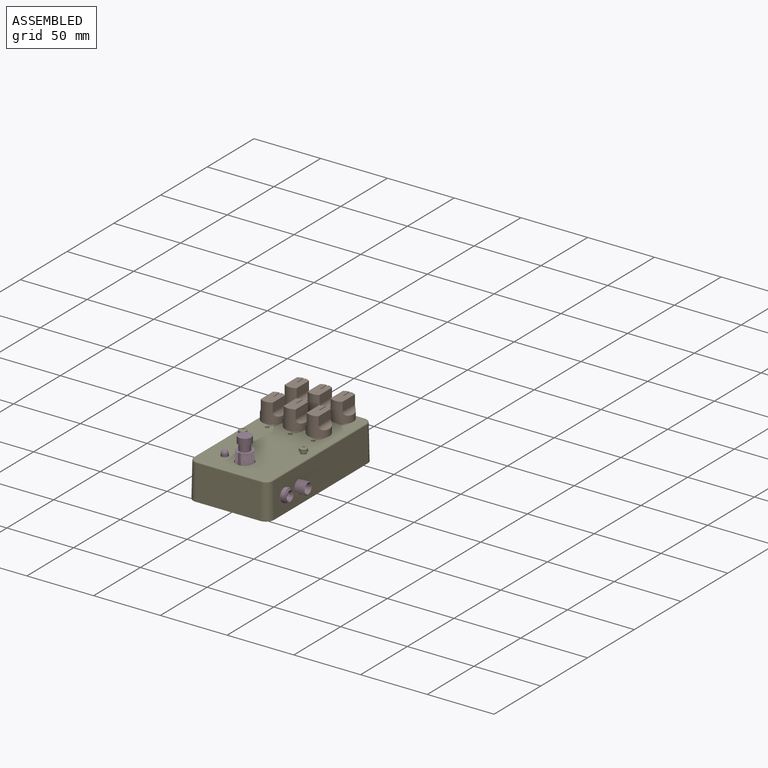
[diagram: assembled view]
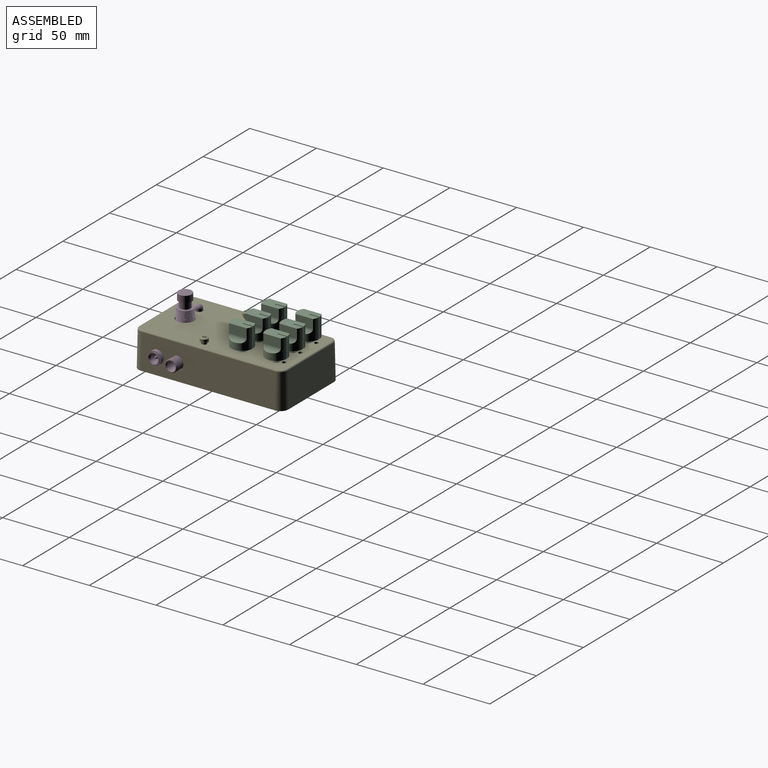
[diagram: assembled view, second angle]
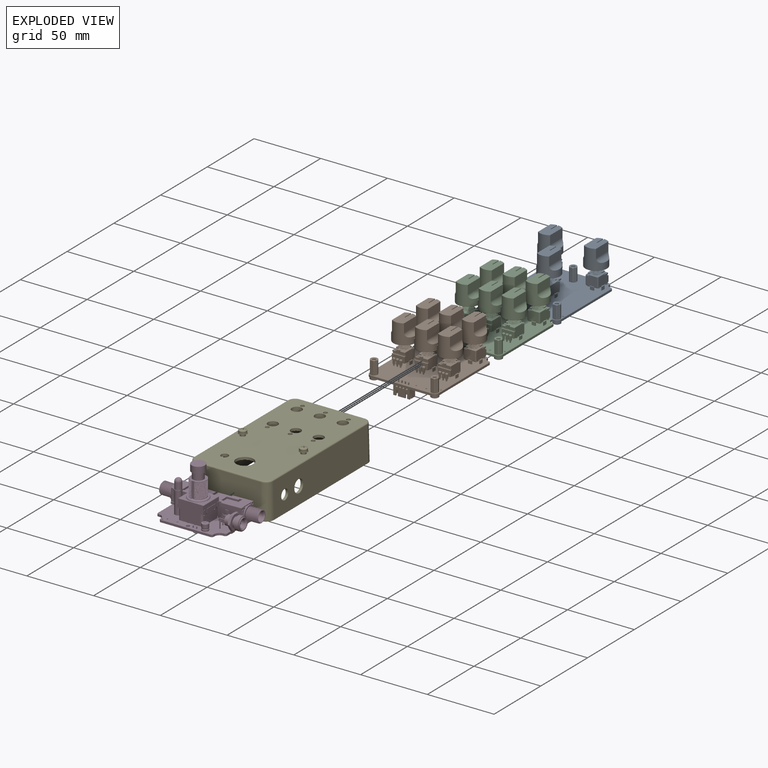
[diagram: exploded view]
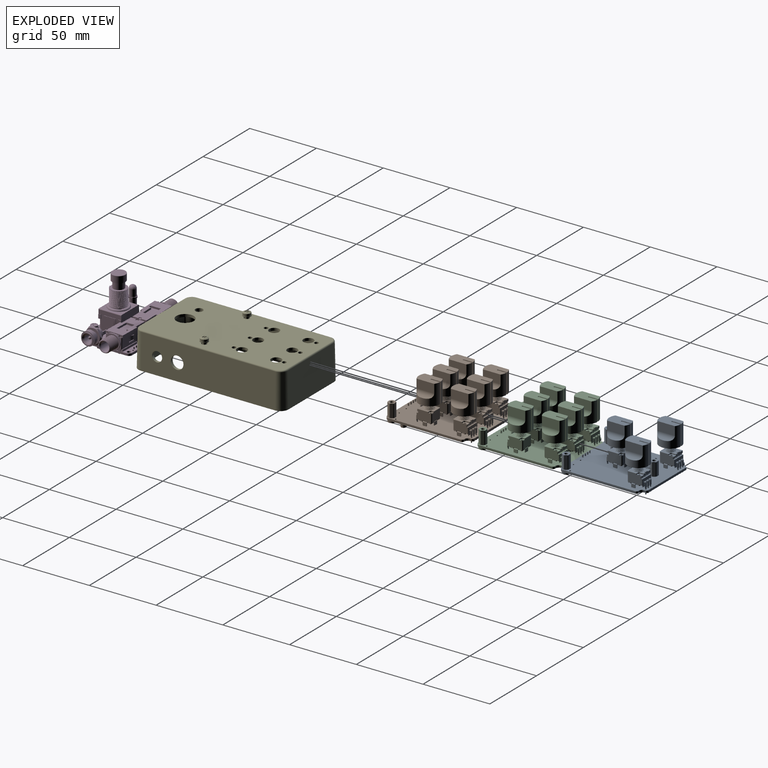
[diagram: exploded view, second angle]
FCSTD DOCUMENT  (FreeCAD 0.20R26858 (Git))
Label: BaseRaw
License: Creative Commons Attribution-ShareAlike
LicenseURL: http://creativecommons.org/licenses/by-sa/4.0/
objects: App::Link×130, Part::Feature×94, App::Part×29, Sketcher::SketchObject×18, PartDesign::Pocket×9, Part::FeaturePython×7, Part::Part2DObjectPython×7, Part::Extrusion×7, Part::Cut×7, PartDesign::CoordinateSystem×4, PartDesign::Body×4, PartDesign::Plane×3, PartDesign::Pad×3, App::VRMLObject×3, PartDesign::FeatureBase×1, PartDesign::Mirrored×1, PartDesign::AdditiveLoft×1, PartDesign::Chamfer×1
note: 181 computed .brp shape members not serialized (recipe doc carries the construction recipe); baked Part::Feature solids carry a one-line shape summary decoded from their .brp

FEATURE [Part::Feature] Part__Feature006  label="1590B BOX"
  Placement = pos=(0,0,0) rot=(-1,0,0;1.5708rad)
  shape: bbox 112.4 x 261 x 60.52 mm, 255 faces (baked)
FEATURE [Part::Feature] Part__Feature007  label="1590B-BS LID"
  Placement = pos=(0,0,0) rot=(0,0.707107,-0.707107;3.14159rad)
  shape: bbox 112.4 x 6.014 x 61.03 mm, 68 faces (baked)
FEATURE [Part::Feature] Part__Feature008  label="SC530 (screw #6-32X 1_2' FH)"
  Placement = pos=(-51.05,1.5362,25.25) rot=(0,1,0;0.650238rad)
  shape: bbox 6.871 x 11.85 x 6.871 mm, 25 faces (baked)
FEATURE [Part::Feature] Part__Feature009  label="SC530 (screw #6-32X 1_2' FH)001"
  Placement = pos=(-51.05,1.5362,-25.25) rot=(0,-1,0;0.529817rad)
  shape: bbox 6.871 x 11.85 x 6.871 mm, 25 faces (baked)
FEATURE [Part::Feature] Part__Feature010  label="SC530 (screw #6-32X 1_2' FH)002"
  Placement = pos=(51.05,1.5362,25.25) rot=(0,0,1;0rad)
  shape: bbox 6.871 x 11.85 x 6.871 mm, 25 faces (baked)
FEATURE [Part::Feature] Part__Feature011  label="SC530 (screw #6-32X 1_2' FH)003"
  Placement = pos=(51.05,1.5362,-25.25) rot=(0,0,1;0rad)
  shape: bbox 6.871 x 11.85 x 6.871 mm, 25 faces (baked)
FEATURE [PartDesign::FeatureBase] BaseFeature
  BaseFeature = -> Part__Feature006
FEATURE [Sketcher::SketchObject] Sketch001
  FullyConstrained = true
  MapMode = 5
  Placement = pos=(0,0,-25) rot=(0,0,1;0rad)
  Support = -> [BaseFeature]
  sketch-geometry (4):
    g0: LineSegment StartX=0 StartY=-20 StartZ=0 EndX=45 EndY=-20 EndZ=0
    g1: LineSegment StartX=45 StartY=-20 StartZ=0 EndX=45 EndY=20 EndZ=0
    g2: LineSegment StartX=45 StartY=20 StartZ=0 EndX=0 EndY=20 EndZ=0
    g3: LineSegment StartX=0 StartY=20 StartZ=0 EndX=0 EndY=-20 EndZ=0
  constraints (11):
    c: Coincident(g0,g1)
    c: Coincident(g1,g2)
    c: Coincident(g2,g3)
    c: Coincident(g3,g0)
    c: Horizontal(g0)
    c: Horizontal(g2)
    c: Vertical(g3)
    c: PointOnObject(g2,g-2)
    c: Symmetric(g1,g0,g-1)
    c: DistanceX(g2,g2) = 45
    c: DistanceY(g1,g1) = 40
FEATURE [PartDesign::Pocket] Pocket  label="RemoveText"
  BaseFeature = -> BaseFeature
  Direction = (0,0,-1)
  Length = 5
  Length2 = 5
  Profile = -> Sketch001
  ReferenceAxis = -> Sketch001 [N_Axis]
  Refine = true
  Reversed = true
  Type = 0
FEATURE [Sketcher::SketchObject] Sketch005
  ExternalGeometry = -> [Pocket]
  FullyConstrained = true
  MapMode = 5
  Placement = pos=(0,0,-27) rot=(1,0,0;3.14159rad)
  Support = -> [Pocket]
  sketch-geometry (2):
    g0: Circle CenterX=-38.3 CenterY=0 CenterZ=0 NormalX=0 NormalY=0 NormalZ=1 AngleXU=0 Radius=6.5
    g1: Circle CenterX=-38.3 CenterY=15 CenterZ=0 NormalX=0 NormalY=0 NormalZ=1 AngleXU=0 Radius=2.75
  constraints (6):
    c: PointOnObject(g0,g-1)
    c: Diameter(g0) = 13
    c: DistanceX(g-3,g0) = 15.75
    c: Diameter(g1) = 5.5
    c: Vertical(g0,g1)
    c: DistanceY(g0,g1) = 15
FEATURE [PartDesign::Pocket] Pocket001  label="FootswitchLed"
  BaseFeature = -> Pocket
  Direction = (0,0,1)
  Length = 5
  Length2 = 5
  Profile = -> Sketch005
  ReferenceAxis = -> Sketch005 [N_Axis]
  Refine = true
  Type = 1
FEATURE [Sketcher::SketchObject] Sketch006
  ExternalGeometry = -> [Pocket001]
  FullyConstrained = true
  MapMode = 5
  Placement = pos=(0,-30.2356,-0.659743) rot=(1,0,0;1.59261rad)
  Support = -> [Pocket001]
  sketch-geometry (1):
    g0: Circle CenterX=-23.3 CenterY=-11.888 CenterZ=0 NormalX=0 NormalY=0 NormalZ=1 AngleXU=0 Radius=4.75
  constraints (3):
    c: Diameter(g0) = 9.5
    c: DistanceX(g-3,g0) = 15
    c: DistanceY(g0,g-1) = 11.888
FEATURE [PartDesign::Pocket] Pocket002  label="Output"
  BaseFeature = -> Pocket001
  Direction = (0,0.999762,0.0218149)
  Length = 5
  Length2 = 5
  Profile = -> Sketch006
  ReferenceAxis = -> Sketch006 [N_Axis]
  Refine = true
  Type = 0
FEATURE [PartDesign::Mirrored] Mirrored002  label="Input"
  BaseFeature = -> Pocket002
  MirrorPlane = -> XZ_Plane008
  Originals = -> [Pocket002]
  Refine = true
FEATURE [Sketcher::SketchObject] Sketch007
  ExternalGeometry = -> [Mirrored002]
  FullyConstrained = true
  MapMode = 5
  Placement = pos=(0,30.2356,-0.659743) rot=(0,0.714778,0.699352;3.14159rad)
  Support = -> [Mirrored002]
  sketch-geometry (1):
    g0: Circle CenterX=38.3 CenterY=-11.888 CenterZ=0 NormalX=0 NormalY=0 NormalZ=1 AngleXU=0 Radius=3.75
  constraints (3):
    c: Vertical(g0,g-3)
    c: DistanceY(g0,g-1) = 11.888
    c: Diameter(g0) = 7.5
FEATURE [PartDesign::Pocket] Pocket003  label="Power"
  BaseFeature = -> Mirrored002
  Direction = (0,-0.999762,0.0218149)
  Length = 5
  Length2 = 5
  Profile = -> Sketch007
  ReferenceAxis = -> Sketch007 [N_Axis]
  Refine = true
  Type = 0
FEATURE [Sketcher::SketchObject] Sketch017
  ExternalGeometry = -> [Pocket003]
  FullyConstrained = true
  MapMode = 5
  Placement = pos=(0,0,-27) rot=(1,0,0;3.14159rad)
  Support = -> [Pocket003]
  sketch-geometry (22):
    g0: Circle CenterX=16.39 CenterY=0 CenterZ=0 NormalX=0 NormalY=0 NormalZ=1 AngleXU=0 Radius=3.75
    g1: Circle CenterX=42.03 CenterY=17.2 CenterZ=0 NormalX=0 NormalY=0 NormalZ=1 AngleXU=0 Radius=3.75
    g2: Circle CenterX=42.03 CenterY=-17.2 CenterZ=0 NormalX=0 NormalY=0 NormalZ=1 AngleXU=0 Radius=3.75
    g3: Circle CenterX=16.39 CenterY=-17.2 CenterZ=0 NormalX=0 NormalY=0 NormalZ=1 AngleXU=0 Radius=3.1
    g4: LineSegment StartX=51.795 StartY=17.5 StartZ=0 EndX=51.795 EndY=-17.5 EndZ=0
    g5: Circle CenterX=10.39 CenterY=0 CenterZ=0 NormalX=0 NormalY=0 NormalZ=1 AngleXU=0 Radius=1.5
    g6: Circle CenterX=48.03 CenterY=17.2 CenterZ=0 NormalX=0 NormalY=0 NormalZ=1 AngleXU=0 Radius=1.5
    g7: Circle CenterX=48.03 CenterY=-17.2 CenterZ=0 NormalX=0 NormalY=0 NormalZ=1 AngleXU=0 Radius=1.5
    g8: LineSegment StartX=42.03 StartY=17.2 StartZ=0 EndX=48.03 EndY=17.2 EndZ=0
    g9: LineSegment StartX=42.03 StartY=-17.2 StartZ=0 EndX=48.03 EndY=-17.2 EndZ=0
    g10: LineSegment StartX=10.39 StartY=0 StartZ=0 EndX=16.39 EndY=0 EndZ=0
    g11: Circle CenterX=42.03 CenterY=0 CenterZ=0 NormalX=0 NormalY=0 NormalZ=1 AngleXU=0 Radius=3.75
    g12: Circle CenterX=48.03 CenterY=0 CenterZ=0 NormalX=0 NormalY=0 NormalZ=1 AngleXU=0 Radius=1.5
    g13: Circle CenterX=16.39 CenterY=17.2 CenterZ=0 NormalX=0 NormalY=0 NormalZ=1 AngleXU=0 Radius=3.75
    g14: Circle CenterX=10.39 CenterY=17.2 CenterZ=0 NormalX=0 NormalY=0 NormalZ=1 AngleXU=0 Radius=1.5
    g15: Circle CenterX=16.39 CenterY=-17.2 CenterZ=0 NormalX=0 NormalY=0 NormalZ=1 AngleXU=0 Radius=3.75
    g16: Circle CenterX=10.39 CenterY=-17.2 CenterZ=0 NormalX=0 NormalY=0 NormalZ=1 AngleXU=0 Radius=1.5
    g17: Circle CenterX=16.39 CenterY=17.2 CenterZ=0 NormalX=0 NormalY=0 NormalZ=1 AngleXU=0 Radius=3.1
    g18: Circle CenterX=42.03 CenterY=17.2 CenterZ=0 NormalX=0 NormalY=0 NormalZ=1 AngleXU=0 Radius=3.1
    g19: Circle CenterX=42.03 CenterY=0 CenterZ=0 NormalX=0 NormalY=0 NormalZ=1 AngleXU=0 Radius=3.1
    g20: Circle CenterX=16.39 CenterY=0 CenterZ=0 NormalX=0 NormalY=0 NormalZ=1 AngleXU=0 Radius=3.1
    g21: Circle CenterX=42.03 CenterY=-17.2 CenterZ=0 NormalX=0 NormalY=0 NormalZ=1 AngleXU=0 Radius=3.1
  constraints (56):
    c: PointOnObject(g0,g-1)
    c: Equal(g0,g1)
    c: Equal(g1,g2)
    c: Symmetric(g2,g1,g-1)
    c: Diameter(g3) = 6.2
    c: Diameter(g0) = 7.5
    c: DistanceY(g-1,g1) = 17.2
    c: Symmetric(g4,g4,g-1)
    c: DistanceY(g4,g4) = 35
    c: DistanceX(g-1,g4) = 51.795
    c: DistanceX(g1,g4) = 9.765
    c: DistanceX(g0,g4) = 35.405
    c: PointOnObject(g5,g-1)
    c: Equal(g5,g7)
    c: Equal(g7,g6)
    c: Horizontal(g6,g1)
    c: Horizontal(g7,g2)
    c: Coincident(g8,g1)
    c: Coincident(g8,g6)
    c: Coincident(g9,g2)
    c: Coincident(g9,g7)
    c: Coincident(g10,g5)
    c: Coincident(g10,g0)
    c: Diameter(g5) = 3
    c: PointOnObject(g11,g-1)
    c: PointOnObject(g12,g-1)
    c: Equal(g5,g12)
    c: Equal(g0,g11)
    c: Coincident(g17,g13)
    c: Coincident(g18,g1)
    c: Coincident(g19,g11)
    c: Coincident(g20,g0)
    c: Coincident(g21,g2)
    c: Coincident(g3,g15)
    c: Horizontal(g16,g15)
    c: Horizontal(g2,g16)
    c: Horizontal(g13,g14)
    c: Horizontal(g1,g14)
    c: Equal(g14,g6)
    c: Equal(g13,g0)
    c: Equal(g15,g0)
    c: Equal(g3,g20)
    c: Equal(g20,g17)
    c: Equal(g17,g18)
    c: Equal(g18,g19)
    c: Equal(g19,g21)
    c: Vertical(g0,g15)
    c: Vertical(g16,g5)
    c: Vertical(g14,g5)
    c: Vertical(g13,g0)
    c: Vertical(g11,g1)
    c: Vertical(g12,g6)
    c: Equal(g5,g16)
    c: DistanceX(g9,g9) = 6
    c: Vertical(g6,g7)
    c: DistanceX(g10,g10) = 6
FEATURE [PartDesign::Pocket] Pocket007  label="Controls"
  BaseFeature = -> Pocket003
  Direction = (0,0,1)
  Length = 5
  Length2 = 5
  Profile = -> Sketch017
  ReferenceAxis = -> Sketch017 [N_Axis]
  Refine = true
  Type = 0
FEATURE [App::Link] C5_C_0603_1608Metric_ed839cd67f06_ln_002  label="C2_C_0603_1608Metric_5705de3501bd001"
  LinkPlacement = pos=(-11.938,-7.62,0) rot=(0,0,1;0rad)
  LinkedObject = -> Shape015
  Placement = pos=(-11.938,-7.62,0) rot=(0,0,1;0rad)
FEATURE [Part::Feature] Shape013  label="TP2_TestPoint_Bridge_Pitch2.54mm_Drill1.0mm_f495187aaf005"
  Placement = pos=(-18,24,0) rot=(0,0,1;0rad)
  shape: bbox 3.615 x 0.8 x 5.208 mm, 5 faces (baked)
FEATURE [App::Link] R6_R_0603_1608Metric_e373ab3427fa_ln_005  label="R3_R_0603_1608Metric_e775f3789665"
  LinkPlacement = pos=(-18.542,7.62,0) rot=(0,0,-1;1.5708rad)
  LinkedObject = -> Shape018
  Placement = pos=(-18.542,7.62,0) rot=(0,0,-1;1.5708rad)
FEATURE [Part::Feature] Part__Feature098  label="COMPOUND007"
  shape: bbox 10.27 x 11 x 11 mm, 22 faces (baked)
FEATURE [Part::Feature] Shape014  label="U1_SOIC_8_39x49mm_P127mm_a43be1e7514e001"
  Placement = pos=(-22.098,2.54,0) rot=(0,0,-1;1.5708rad)
  shape: bbox 4.9 x 6 x 1.75 mm, 156 faces (baked)
FEATURE [Part::Feature] Shape015  label="C5_C_0603_1608Metric_ed839cd67f007"
  Placement = pos=(-15.748,5.08,0) rot=(0,0,1;0rad)
  shape: bbox 1.6 x 0.8 x 0.8 mm, 28 faces (baked)
FEATURE [Part::Feature] Part__Feature099  label="3PDT Pin009"
  Placement = pos=(1.8,10.9194,0.772657) rot=(-1,0,0;1.5708rad)
  shape: bbox 4 x 0.8 x 7 mm, 14 faces (baked)
FEATURE [App::Link] R6_R_0603_1608Metric_e373ab3427fa_ln_006  label="R5_R_0603_1608Metric_e64c7f06deaf001"
  LinkPlacement = pos=(14.224,22.86,0) rot=(0,0,1;3.14159rad)
  LinkedObject = -> Shape018
  Placement = pos=(14.224,22.86,0) rot=(0,0,1;3.14159rad)
FEATURE [Part::Feature] Pcb_e0ed001
  Placement = pos=(-149.5,108.5,0) rot=(0,0,1;0rad)
  shape: bbox 52 x 40 x 1.6 mm, 139 faces (baked)
FEATURE [PartDesign::CoordinateSystem] Local_CS_e0ed001
  AttacherType = Attacher::AttachEngine3D
FEATURE [Part::Feature] Shape016  label="Q1_SOT_23_534e9f9556c009"
  Placement = pos=(-16.51,-9.906,0) rot=(0,0,1;1.5708rad)
  shape: bbox 3 x 2.5 x 1.2 mm, 76 faces (baked)
FEATURE [App::Link] TP2_TestPoint_Bridge_Pitch2_54mm_Drill1_0mm_f495187aaf04_ln_002  label="TP4_TestPoint_Bridge_Pitch2.54mm_Drill1.0mm_d95ce774cbb001"
  LinkPlacement = pos=(-4,-11,0) rot=(0,0,1;3.14159rad)
  LinkedObject = -> Shape013
  Placement = pos=(-4,-11,0) rot=(0,0,1;3.14159rad)
FEATURE [Part::Feature] Part__Feature100  label="3PDT Pin010"
  Placement = pos=(12.2,6.31941,0.772657) rot=(-1,0,0;1.5708rad)
  shape: bbox 4 x 0.8 x 7 mm, 14 faces (baked)
FEATURE [Part::Feature] Part__Feature101  label="3PDT Pin011"
  Placement = pos=(7,6.31941,0.772657) rot=(-1,0,0;1.5708rad)
  shape: bbox 4 x 0.8 x 7 mm, 14 faces (baked)
FEATURE [Part::Feature] Part__Feature102  label="COMPOUND008"
  shape: bbox 16.2 x 12.2 x 15.9 mm, 95 faces (baked)
FEATURE [Part::Feature] Shape017  label="D1_Body004_26b9df9aa127[2]001"
  Placement = pos=(13.716,0,0.4) rot=(1,0,0;3.14159rad)
  shape: bbox 0.48 x 0.48 x 10 mm, 6 faces (baked)
FEATURE [Part::Feature] Shape018  label="R6_R_0603_1608Metric_e373ab3427fa001"
  Placement = pos=(14.187,24.892,0) rot=(0,0,1;3.14159rad)
  shape: bbox 1.6 x 0.8 x 0.45 mm, 26 faces (baked)
FEATURE [Part::Feature] Shape019  label="C3_C_0805_2012Metric_f14ae5192a1e001"
  Placement = pos=(14.986,7.62,0) rot=(0,0,-1;1.5708rad)
  shape: bbox 1.25 x 2 x 1.25 mm, 28 faces (baked)
FEATURE [Part::Feature] Part__Feature103  label="nut001"
  Placement = pos=(0,0,-3) rot=(0,0,1;0rad)
  shape: bbox 12.7 x 12.7 x 2.001 mm, 14 faces (baked)
FEATURE [App::Link] C5_C_0603_1608Metric_ed839cd67f06_ln_003  label="C4_C_0603_1608Metric_09372772c7d006"
  LinkPlacement = pos=(-14.986,7.62,0) rot=(0,0,-1;1.5708rad)
  LinkedObject = -> Shape015
  Placement = pos=(-14.986,7.62,0) rot=(0,0,-1;1.5708rad)
FEATURE [Part::Feature] Part__Feature104  label="COMPOUND009"
  shape: bbox 25.5 x 13 x 12 mm, 103 faces (baked)
FEATURE [App::Link] R6_R_0603_1608Metric_e373ab3427fa_ln_007  label="R4_R_0603_1608Metric_1c223430d31e001"
  LinkPlacement = pos=(-16.764,7.62,0) rot=(0,0,1;1.5708rad)
  LinkedObject = -> Shape018
  Placement = pos=(-16.764,7.62,0) rot=(0,0,1;1.5708rad)
FEATURE [Part::Feature] Part__Feature105  label="3PDT Pin012"
  Placement = pos=(12.2,1.71941,0.772657) rot=(-1,0,0;1.5708rad)
  shape: bbox 4 x 0.8 x 7 mm, 14 faces (baked)
FEATURE [Sketcher::SketchObject] PCB_Sketch_e0ed001
  FullyConstrained = false
  sketch-geometry (16):
    g0: LineSegment StartX=-20 StartY=-11.5 StartZ=0 EndX=-20 EndY=-12 EndZ=0
    g1: LineSegment StartX=24.5 StartY=-7.5 StartZ=0 EndX=24 EndY=-7.5 EndZ=0
    g2: LineSegment StartX=26 StartY=24 StartZ=0 EndX=26 EndY=-6 EndZ=0
    g3: LineSegment StartX=-26 StartY=24 StartZ=0 EndX=-26 EndY=-6 EndZ=0
    g4: LineSegment StartX=-23.5 StartY=26.5 StartZ=0 EndX=23.5 EndY=26.5 EndZ=0
    g5: LineSegment StartX=20 StartY=-11.5 StartZ=0 EndX=20 EndY=-12 EndZ=0
    g6: LineSegment StartX=-18.5 StartY=-13.5 StartZ=0 EndX=18.5 EndY=-13.5 EndZ=0
    g7: LineSegment StartX=-24.5 StartY=-7.5 StartZ=0 EndX=-24 EndY=-7.5 EndZ=0
    g8: ArcOfCircle CenterX=-24 CenterY=-11.5 CenterZ=0 NormalX=0 NormalY=0 NormalZ=-1 AngleXU=1.5708 Radius=4 StartAngle=0 EndAngle=1.5708
    g9: ArcOfCircle CenterX=24 CenterY=-11.5 CenterZ=0 NormalX=0 NormalY=0 NormalZ=-1 AngleXU=1.06478e-07 Radius=4 StartAngle=0 EndAngle=1.5708
    g10: ArcOfCircle CenterX=-18.5 CenterY=-12 CenterZ=0 NormalX=0 NormalY=0 NormalZ=-1 AngleXU=-1.5708 Radius=1.5 StartAngle=0 EndAngle=1.5708
    g11: ArcOfCircle CenterX=-23.5 CenterY=24 CenterZ=0 NormalX=0 NormalY=0 NormalZ=-1 AngleXU=-6.42332e-08 Radius=2.5 StartAngle=0 EndAngle=1.5708
    g12: ArcOfCircle CenterX=-24.5 CenterY=-6 CenterZ=0 NormalX=0 NormalY=0 NormalZ=-1 AngleXU=-1.5708 Radius=1.5 StartAngle=0 EndAngle=1.5708
    g13: ArcOfCircle CenterX=18.5 CenterY=-12 CenterZ=0 NormalX=0 NormalY=0 NormalZ=-1 AngleXU=-3.14159 Radius=1.5 StartAngle=0 EndAngle=1.5708
    g14: ArcOfCircle CenterX=23.5 CenterY=24 CenterZ=0 NormalX=0 NormalY=0 NormalZ=-1 AngleXU=1.5708 Radius=2.5 StartAngle=0 EndAngle=1.5708
    g15: ArcOfCircle CenterX=24.5 CenterY=-6 CenterZ=0 NormalX=0 NormalY=0 NormalZ=-1 AngleXU=-3.14159 Radius=1.5 StartAngle=0 EndAngle=1.5708
  constraints (16):
    c: Coincident(g12,g3)
    c: Coincident(g11,g3)
    c: Coincident(g12,g7)
    c: Coincident(g8,g7)
    c: Coincident(g11,g4)
    c: Coincident(g0,g10)
    c: Coincident(g8,g0)
    c: Coincident(g6,g10)
    c: Coincident(g6,g13)
    c: Coincident(g5,g13)
    c: Coincident(g5,g9)
    c: Coincident(g4,g14)
    c: Coincident(g9,g1)
    c: Coincident(g15,g1)
    c: Coincident(g15,g2)
    c: Coincident(g14,g2)
FEATURE [App::Part] Board_Geoms_e0ed001  label="Board_Geoms_e0ed003"
  Group = -> [Local_CS_e0ed001,Pcb_e0ed001,PCB_Sketch_e0ed001]
  Origin = -> Origin035
FEATURE [App::Link] R6_R_0603_1608Metric_e373ab3427fa_ln_008  label="R1_R_0603_1608Metric_ae2e8ad4450b001"
  LinkPlacement = pos=(18.796,7.62,0) rot=(0,0,1;1.5708rad)
  LinkedObject = -> Shape018
  Placement = pos=(18.796,7.62,0) rot=(0,0,1;1.5708rad)
FEATURE [App::Link] TP2_TestPoint_Bridge_Pitch2_54mm_Drill1_0mm_f495187aaf04_ln_003  label="TP6_TestPoint_Bridge_Pitch2.54mm_Drill1.0mm_6a5fed8bd0e006"
  LinkPlacement = pos=(-11.77,24,0) rot=(0,0,1;0rad)
  LinkedObject = -> Shape013
  Placement = pos=(-11.77,24,0) rot=(0,0,1;0rad)
FEATURE [App::Link] D1_Body004_26b9df9aa127_2__ln_005  label="D1_Body004_26b9df9aa127[3]001"
  LinkPlacement = pos=(16.256,3e-16,0.4) rot=(1,0,0;3.14159rad)
  LinkedObject = -> Shape017
  Placement = pos=(16.256,3e-16,0.4) rot=(1,0,0;3.14159rad)
FEATURE [Part::Feature] Part__Feature106  label="jack001"
  shape: bbox 10 x 10 x 18.2 mm, 38 faces (baked)
FEATURE [App::Link] D1_Body004_26b9df9aa127_2__ln_006  label="D1_Body004_26b9df9aa127[4]001"
  LinkPlacement = pos=(13.716,0,-9.6) rot=(1,0,0;3.14159rad)
  LinkedObject = -> Shape017
  Placement = pos=(13.716,0,-9.6) rot=(1,0,0;3.14159rad)
FEATURE [App::Part] Unnamed001  label="J3_Unnamed_1af80132107c001"
  Group = -> [Part__Feature106,Part__Feature103]
  Origin = -> Origin033
  Placement = pos=(-29.967,0,-7.6) rot=(0.581503,0.581503,-0.568953;4.17615rad)
FEATURE [App::Link] D1_Body004_26b9df9aa127_2__ln_007  label="D1_Body004_26b9df9aa127[5]001"
  LinkPlacement = pos=(16.256,3e-16,-9.6) rot=(1,0,0;3.14159rad)
  LinkedObject = -> Shape017
  Placement = pos=(16.256,3e-16,-9.6) rot=(1,0,0;3.14159rad)
FEATURE [Part::Feature] Part__Feature107  label="3PDT Cover001"
  Placement = pos=(-0.5,14.8194,11.7727) rot=(1,0,0;1.5708rad)
  shape: bbox 19 x 17 x 8.5 mm, 54 faces (baked)
FEATURE [Part::Feature] Part__Feature108  label="3PDT Pin013"
  Placement = pos=(1.8,1.71941,0.772657) rot=(-1,0,0;1.5708rad)
  shape: bbox 4 x 0.8 x 7 mm, 14 faces (baked)
FEATURE [Part::Feature] Shape020  label="D1_LED_D5.0mm_26b9df9aa128"
  Placement = pos=(13.716,0,-14.6) rot=(1,0,0;3.14159rad)
  shape: bbox 5.4 x 5.8 x 14.1 mm, 16 faces (baked)
FEATURE [Part::Feature] Part__Feature109  label="3PDT Schalter001"
  Placement = pos=(9,6.31941,28.2727) rot=(0,0,-1;1.5708rad)
  shape: bbox 12.34 x 12.34 x 22.03 mm, 108 faces (baked)
FEATURE [Part::Feature] Part__Feature110  label="3PDT Pin014"
  Placement = pos=(12.2,10.9194,0.772657) rot=(-1,0,0;1.5708rad)
  shape: bbox 4 x 0.8 x 7 mm, 14 faces (baked)
FEATURE [App::Link] R6_R_0603_1608Metric_e373ab3427fa_ln_009  label="R2_R_0603_1608Metric_8f786b1be1ec001"
  LinkPlacement = pos=(17.018,7.62,0) rot=(0,0,-1;1.5708rad)
  LinkedObject = -> Shape018
  Placement = pos=(17.018,7.62,0) rot=(0,0,-1;1.5708rad)
FEATURE [App::Part] Top_e0ed001  label="Top_e0ed003"
  Group = -> [Shape018,Shape013,TP2_TestPoint_Bridge_Pitch2_54mm_Drill1_0mm_f495187aaf04_ln_003,Shape015,R6_R_0603_1608Metric_e373ab3427fa_ln_005,Shape014,R6_R_0603_1608Metric_e373ab3427fa_ln_007,Shape016,R6_R_0603_1608Metric_e373ab3427fa_ln_008,Shape019,C5_C_0603_1608Metric_ed839cd67f06_ln_002,C5_C_0603_1608Metric_ed839cd67f06_ln_003,TP2_TestPoint_Bridge_Pitch2_54mm_Drill1_0mm_f495187aaf04_ln_002,+2 more]
  Origin = -> Origin038
FEATURE [Part::Feature] Part__Feature111  label="3PDT Pin015"
  Placement = pos=(1.8,6.31941,0.772657) rot=(-1,0,0;1.5708rad)
  shape: bbox 4 x 0.8 x 7 mm, 14 faces (baked)
FEATURE [Part::Feature] Part__Feature112  label="COMPOUND010"
  shape: bbox 19.15 x 10.4 x 9.8 mm, 42 faces (baked)
FEATURE [App::Link] D1_Body004_26b9df9aa127_2__ln_008  label="J3_Body004_1af80132107c[3]001"
  LinkPlacement = pos=(-16.617,2.6,0.9) rot=(0,1,0;3.14159rad)
  LinkedObject = -> Shape017
  Placement = pos=(-16.617,2.6,0.9) rot=(0,1,0;3.14159rad)
FEATURE [App::Link] D1_Body004_26b9df9aa127_2__ln_009  label="J3_Body004_1af80132107c[2]001"
  LinkPlacement = pos=(-18.027,-2.6,0.9) rot=(0,1,0;3.14159rad)
  LinkedObject = -> Shape017
  Placement = pos=(-18.027,-2.6,0.9) rot=(0,1,0;3.14159rad)
FEATURE [Part::Feature] Part__Feature113  label="COMPOUND011"
  shape: bbox 3.2 x 0.35 x 6.9 mm, 16 faces (baked)
FEATURE [Part::Feature] Shape021  label="C1_CP_Radial_D50mm_P200mm_51f96d1c692f001"
  Placement = pos=(-13.1471,-9.906,-1.6) rot=(1,0,0;3.14159rad)
  shape: bbox 6.128 x 6.515 x 7 mm, 49 faces (baked)
FEATURE [App::Link] J1_PJ_602B_95183974273b_ln_001  label="J2_PJ-602B_62de48d8556c001"
  LinkPlacement = pos=(28.1,15,-1.1) rot=(0,1,0;3.16341rad)
  LinkedObject = -> PJ_602B001
  Placement = pos=(28.1,15,-1.1) rot=(0,1,0;3.16341rad)
FEATURE [Part::Feature] Part__Feature114  label="3PDT Pin016"
  Placement = pos=(7,10.9194,0.772657) rot=(-1,0,0;1.5708rad)
  shape: bbox 4 x 0.8 x 7 mm, 14 faces (baked)
FEATURE [Part::Feature] Part__Feature115  label="3PDT Body001"
  Placement = pos=(0,-2.18059,0.772657) rot=(0,0,1;0rad)
  shape: bbox 19.6 x 17 x 15 mm, 70 faces (baked)
FEATURE [Part::Feature] Part__Feature116  label="3PDT Pin017"
  Placement = pos=(7,1.71941,0.772657) rot=(-1,0,0;1.5708rad)
  shape: bbox 4 x 0.8 x 7 mm, 14 faces (baked)
FEATURE [App::Part] _PDT001  label="SW1_3PDT_632943731c3a001"
  Group = -> [Part__Feature115,Part__Feature107,Part__Feature116,Part__Feature105,Part__Feature108,Part__Feature101,Part__Feature100,Part__Feature111,Part__Feature114,Part__Feature110,Part__Feature099,Part__Feature109]
  Origin = -> Origin041
  Placement = pos=(9,-6.319,-1.6) rot=(0,1,0;3.14159rad)
FEATURE [Part::Feature] Part__Feature117  label="COMPOUND013"
  shape: bbox 5.2 x 0.35 x 6.9 mm, 18 faces (baked)
FEATURE [App::Part] COMPOUND001  label="COMPOUND012"
  Group = -> [Part__Feature112,Part__Feature104,Part__Feature098,Part__Feature102,Part__Feature113,Part__Feature117]
  Origin = -> Origin036
FEATURE [App::Part] PJ_602B001  label="J1_PJ-602B_95183974273b001"
  Group = -> [COMPOUND001]
  Origin = -> Origin040
  Placement = pos=(-28.105,15,-1.1) rot=(0.999941,0,0.010908;3.14159rad)
FEATURE [App::Part] Bot_e0ed001  label="Bot_e0ed003"
  Group = -> [_PDT001,Shape020,Shape017,D1_Body004_26b9df9aa127_2__ln_005,D1_Body004_26b9df9aa127_2__ln_006,D1_Body004_26b9df9aa127_2__ln_007,Unnamed001,D1_Body004_26b9df9aa127_2__ln_009,D1_Body004_26b9df9aa127_2__ln_008,Shape021,PJ_602B001,J1_PJ_602B_95183974273b_ln_001]
  Origin = -> Origin039
FEATURE [App::Part] Step_Models_e0ed001  label="Step_Models_e0ed003"
  Group = -> [Top_e0ed001,Bot_e0ed001]
  Origin = -> Origin034
FEATURE [PartDesign::Plane] DatumPlane004  label="CaseTop"
  AttachmentOffset = pos=(0,0,27) rot=(0,0,1;0rad)
  Length = 128.893
  MapMode = 5
  Placement = pos=(0,0,-27) rot=(0,1,0;3.14159rad)
  ResizeMode = 0
  Support = -> [XY_Plane008]
  Width = 76.9927
FEATURE [Sketcher::SketchObject] Sketch019
  FullyConstrained = true
  MapMode = 5
  Placement = pos=(0,0,-27) rot=(0,1,0;3.14159rad)
  Support = -> [DatumPlane004]
  sketch-geometry (3):
    g0: Circle CenterX=7.95 CenterY=22.75 CenterZ=0 NormalX=0 NormalY=0 NormalZ=1 AngleXU=0 Radius=2
    g1: Circle CenterX=7.95 CenterY=-22.75 CenterZ=0 NormalX=0 NormalY=0 NormalZ=1 AngleXU=0 Radius=2
    g2: Circle CenterX=-42.035 CenterY=0 CenterZ=0 NormalX=0 NormalY=0 NormalZ=1 AngleXU=0 Radius=2
  constraints (8):
    c: Symmetric(g1,g0,g-1)
    c: Diameter(g0) = 4
    c: DistanceY(g-1,g0) = 22.75
    c: DistanceX(g-1,g0) = 7.95
    c: Equal(g1,g0)
    c: PointOnObject(g2,g-1)
    c: DistanceX(g2,g0) = 49.985
    c: Equal(g0,g2)
FEATURE [PartDesign::Pocket] Pocket008  label="Mounts"
  BaseFeature = -> Pocket007
  Direction = (0,0,1)
  Length = 5
  Length2 = 5
  Profile = -> Sketch019
  ReferenceAxis = -> Sketch019 [N_Axis]
  Refine = true
  Type = 0
FEATURE [PartDesign::Body] Body001  label="Case"
  BaseFeature = -> Part__Feature006
  Group = -> [BaseFeature,Sketch001,Pocket,Sketch005,Pocket001,Sketch006,Pocket002,Mirrored002,Sketch007,Pocket003,Sketch017,Pocket007,DatumPlane004,Sketch019,Pocket008]
  Origin = -> Origin008
  Placement = pos=(0,0,0) rot=(-1,0,0;1.5708rad)
  Tip = -> Pocket008
FEATURE [Sketcher::SketchObject] Sketch020
  FullyConstrained = true
  MapMode = 5
  Support = -> [XY_Plane]
  sketch-geometry (3):
    g0: Circle CenterX=0 CenterY=0 CenterZ=0 NormalX=0 NormalY=0 NormalZ=1 AngleXU=0 Radius=2.5
    g1: Circle CenterX=-1.27 CenterY=0 CenterZ=0 NormalX=0 NormalY=0 NormalZ=1 AngleXU=0 Radius=0.5
    g2: Circle CenterX=1.27 CenterY=0 CenterZ=0 NormalX=0 NormalY=0 NormalZ=1 AngleXU=0 Radius=0.5
  constraints (7):
    c: Coincident(g0,g-1)
    c: Diameter(g0) = 5
    c: PointOnObject(g1,g-1)
    c: Equal(g2,g1)
    c: Symmetric(g1,g2,g-2)
    c: DistanceX(g1,g2) = 2.54
    c: Diameter(g1) = 1
FEATURE [PartDesign::Pad] Pad009
  Direction = (0,0,1)
  Length = 16
  Length2 = 10
  Profile = -> Sketch020
  ReferenceAxis = -> Sketch020 [N_Axis]
  Refine = true
  Type = 0
FEATURE [PartDesign::Body] Body007  label="LEDSpacer"
  Group = -> [Sketch020,Pad009]
  Origin = -> Origin
  Placement = pos=(15.0299,0.0044,-17.6211) rot=(0,0,1;0rad)
  Tip = -> Pad009
FEATURE [App::Part] Board_e0ed001  label="Lower"
  Group = -> [Board_Geoms_e0ed001,Step_Models_e0ed001,Body007]
  Origin = -> Origin037
  Placement = pos=(-6e-16,-38.3,4.9) rot=(0,1,0;3.14159rad)
FEATURE [PartDesign::CoordinateSystem] Local_CS_d175
  AttacherType = Attacher::AttachEngine3D
FEATURE [App::Link] MK2_M3x5x10_Spacer_4be4b4658190_2__ln_002  label="MK2_M3x5x10-Spacer_efddd3a8276f[2]001"
  LinkPlacement = pos=(22.75,-59.75,-11.6) rot=(0,0,1;0rad)
  LinkedObject = -> Shape001
  Placement = pos=(22.75,-59.75,-11.6) rot=(0,0,1;0rad)
FEATURE [App::Link] MK2_M3x6_Screw_4be4b4658190_ln_002  label="MK2_M3x6-Screw_efddd3a8276f001"
  LinkPlacement = pos=(22.75,-59.75,0) rot=(0,0,1;0rad)
  LinkedObject = -> Shape
  Placement = pos=(22.75,-59.75,0) rot=(0,0,1;0rad)
FEATURE [Sketcher::SketchObject] PCB_Sketch_d175
  FullyConstrained = false
  sketch-geometry (16):
    g0: LineSegment StartX=26 StartY=-6 StartZ=0 EndX=26 EndY=-59.75 EndZ=0
    g1: LineSegment StartX=-26 StartY=-6 StartZ=0 EndX=-26 EndY=-59.75 EndZ=0
    g2: LineSegment StartX=24 StartY=-4.5 StartZ=0 EndX=24.5 EndY=-4.5 EndZ=0
    g3: LineSegment StartX=-21.5 StartY=-2 StartZ=0 EndX=-21.5 EndY=-1.5 EndZ=0
    g4: LineSegment StartX=21.5 StartY=-2 StartZ=0 EndX=21.5 EndY=-1.5 EndZ=0
    g5: LineSegment StartX=-24.5 StartY=-4.5 StartZ=0 EndX=-24 EndY=-4.5 EndZ=0
    g6: LineSegment StartX=-22.75 StartY=-63 StartZ=0 EndX=22.75 EndY=-63 EndZ=0
    g7: LineSegment StartX=-20 StartY=7e-16 StartZ=0 EndX=20 EndY=9e-16 EndZ=0
    g8: ArcOfCircle CenterX=-22.75 CenterY=-59.75 CenterZ=0 NormalX=0 NormalY=0 NormalZ=-1 AngleXU=-1.5708 Radius=3.25 StartAngle=0 EndAngle=1.5708
    g9: ArcOfCircle CenterX=24 CenterY=-2 CenterZ=0 NormalX=0 NormalY=0 NormalZ=-1 AngleXU=-1.5708 Radius=2.5 StartAngle=0 EndAngle=1.5708
    g10: ArcOfCircle CenterX=-24.5 CenterY=-6 CenterZ=0 NormalX=0 NormalY=0 NormalZ=-1 AngleXU=3.90995e-07 Radius=1.5 StartAngle=0 EndAngle=1.5708
    g11: ArcOfCircle CenterX=22.75 CenterY=-59.75 CenterZ=0 NormalX=0 NormalY=0 NormalZ=-1 AngleXU=-3.14159 Radius=3.25 StartAngle=0 EndAngle=1.5708
    g12: ArcOfCircle CenterX=-24 CenterY=-2 CenterZ=0 NormalX=0 NormalY=0 NormalZ=-1 AngleXU=3.14159 Radius=2.5 StartAngle=0 EndAngle=1.5708
    g13: ArcOfCircle CenterX=-20 CenterY=-1.5 CenterZ=0 NormalX=0 NormalY=0 NormalZ=-1 AngleXU=3.90995e-07 Radius=1.5 StartAngle=0 EndAngle=1.5708
    g14: ArcOfCircle CenterX=20 CenterY=-1.5 CenterZ=0 NormalX=0 NormalY=0 NormalZ=-1 AngleXU=1.5708 Radius=1.5 StartAngle=0 EndAngle=1.5708
    g15: ArcOfCircle CenterX=24.5 CenterY=-6 CenterZ=0 NormalX=0 NormalY=0 NormalZ=-1 AngleXU=1.5708 Radius=1.5 StartAngle=0 EndAngle=1.5708
  constraints (16):
    c: Coincident(g1,g8)
    c: Coincident(g1,g10)
    c: Coincident(g5,g10)
    c: Coincident(g5,g12)
    c: Coincident(g6,g8)
    c: Coincident(g3,g12)
    c: Coincident(g3,g13)
    c: Coincident(g7,g13)
    c: Coincident(g7,g14)
    c: Coincident(g4,g9)
    c: Coincident(g4,g14)
    c: Coincident(g6,g11)
    c: Coincident(g2,g9)
    c: Coincident(g2,g15)
    c: Coincident(g0,g11)
    c: Coincident(g0,g15)
FEATURE [Part::Feature] Part__Feature  label="RD901F-40-15R1 v072"
  shape: bbox 9.632 x 11.42 x 0.8 mm, 32 faces (baked)
FEATURE [Part::Feature] Part__Feature001  label="RD901F-40-15R1 v073"
  shape: bbox 9.5 x 11.35 x 4 mm, 16 faces (baked)
FEATURE [Part::Feature] Part__Feature002  label="RD901F-40-15R1 v074"
  shape: bbox 11.72 x 9.1 x 6.2 mm, 84 faces (baked)
FEATURE [Part::Feature] Part__Feature003  label="RD901F-40-15R1 v075"
  shape: bbox 9.57 x 11.32 x 17.5 mm, 80 faces (baked)
FEATURE [Part::Feature] Part__Feature004  label="RD901F-40-15R1 v076"
  shape: bbox 1.813 x 1.813 x 7.513 mm, 10 faces (baked)
FEATURE [Part::Feature] Part__Feature005  label="RD901F-40-15R1 v077"
  shape: bbox 1.813 x 1.813 x 7.513 mm, 10 faces (baked)
FEATURE [Part::Feature] Part__Feature145  label="RD901F-40-15R1 v078"
  shape: bbox 1.8 x 1.15 x 8.5 mm, 18 faces (baked)
FEATURE [Part::Feature] Part__Feature146  label="RD901F-40-15R1 v079"
  shape: bbox 1.8 x 1.15 x 8.5 mm, 18 faces (baked)
FEATURE [Part::Feature] Part__Feature147  label="RD901F-40-15R1 v080"
  shape: bbox 1.8 x 1.15 x 8.5 mm, 18 faces (baked)
FEATURE [Part::Feature] Pcb_d175
  Placement = pos=(-149.5,67.5,0) rot=(0,0,1;0rad)
  shape: bbox 52 x 63 x 1.6 mm, 119 faces (baked)
FEATURE [App::Part] Board_Geoms_d175  label="Board_Geoms_d176"
  Group = -> [Local_CS_d175,Pcb_d175,PCB_Sketch_d175]
  Origin = -> Origin055
FEATURE [App::Part] RD901F_40_15R1_v016  label="RV100_RD901F-40-15R1 v018_ea79e50ac818"
  Group = -> [Part__Feature,Part__Feature001,Part__Feature002,Part__Feature003,Part__Feature004,Part__Feature005,Part__Feature145,Part__Feature146,Part__Feature147]
  Origin = -> Origin057
  Placement = pos=(-17.2,-9.765,-1.6) rot=(1,0,0;3.14159rad)
FEATURE [App::Link] RV100_PointyKnob16mm_ea79e50ac817_2__ln_  label="RV202_PointyKnob16mm_7593dc9b77bd[2]"
  LinkPlacement = pos=(17.2,-35.405,-1.6) rot=(1,0,0;3.14159rad)
  LinkedObject = -> Shape003
  Placement = pos=(17.2,-35.405,-1.6) rot=(1,0,0;3.14159rad)
FEATURE [App::Link] RV100_PointyKnob16mm_ea79e50ac817_2__ln_001  label="RV201_PointyKnob16mm_46d465568dba[2]"
  LinkPlacement = pos=(0,-35.405,-1.6) rot=(1,0,0;3.14159rad)
  LinkedObject = -> Shape003
  Placement = pos=(0,-35.405,-1.6) rot=(1,0,0;3.14159rad)
FEATURE [App::Link] RV100_PointyKnob16mm_ea79e50ac817_2__ln_002  label="RV102_PointyKnob16mm_909dc413c978[2]"
  LinkPlacement = pos=(17.2,-9.765,-1.6) rot=(1,0,0;3.14159rad)
  LinkedObject = -> Shape003
  Placement = pos=(17.2,-9.765,-1.6) rot=(1,0,0;3.14159rad)
FEATURE [App::Link] RV100_PointyKnob16mm_ea79e50ac817_2__ln_003  label="RV200_PointyKnob16mm_2a5aefb43378[2]"
  LinkPlacement = pos=(-17.2,-35.405,-1.6) rot=(1,0,0;3.14159rad)
  LinkedObject = -> Shape003
  Placement = pos=(-17.2,-35.405,-1.6) rot=(1,0,0;3.14159rad)
FEATURE [App::Link] RV100_PointyKnob16mm_ea79e50ac817_2__ln_004  label="RV101_PointyKnob16mm_56c4e5315cd2[2]"
  LinkPlacement = pos=(1.8e-15,-9.765,-1.6) rot=(1,0,0;3.14159rad)
  LinkedObject = -> Shape003
  Placement = pos=(1.8e-15,-9.765,-1.6) rot=(1,0,0;3.14159rad)
FEATURE [App::Link] RV100_RD901F_40_15R1_v018_ea79e50ac817_ln_002  label="RV202_RD901F-40-15R1 v018_7593dc9b77bd"
  LinkPlacement = pos=(17.2,-35.405,-1.6) rot=(0,1,0;3.14159rad)
  LinkedObject = -> RD901F_40_15R1_v016
  Placement = pos=(17.2,-35.405,-1.6) rot=(0,1,0;3.14159rad)
FEATURE [App::Link] RV100_RD901F_40_15R1_v018_ea79e50ac817_ln_003  label="RV201_RD901F-40-15R1 v018_46d465568dba"
  LinkPlacement = pos=(0,-35.405,-1.6) rot=(0,1,0;3.14159rad)
  LinkedObject = -> RD901F_40_15R1_v016
  Placement = pos=(0,-35.405,-1.6) rot=(0,1,0;3.14159rad)
FEATURE [App::Link] RV100_RD901F_40_15R1_v018_ea79e50ac817_ln_004  label="RV102_RD901F-40-15R1 v018_909dc413c979"
  LinkPlacement = pos=(17.2,-9.765,-1.6) rot=(1,0,0;3.14159rad)
  LinkedObject = -> RD901F_40_15R1_v016
  Placement = pos=(17.2,-9.765,-1.6) rot=(1,0,0;3.14159rad)
FEATURE [App::Link] RV100_RD901F_40_15R1_v018_ea79e50ac817_ln_005  label="RV200_RD901F-40-15R1 v018_2a5aefb43378"
  LinkPlacement = pos=(-17.2,-35.405,-1.6) rot=(0,1,0;3.14159rad)
  LinkedObject = -> RD901F_40_15R1_v016
  Placement = pos=(-17.2,-35.405,-1.6) rot=(0,1,0;3.14159rad)
FEATURE [App::Link] RV100_RD901F_40_15R1_v018_ea79e50ac817_ln_006  label="RV101_RD901F-40-15R1 v018_56c4e5315cd003"
  LinkPlacement = pos=(1.8e-15,-9.765,-1.6) rot=(1,0,0;3.14159rad)
  LinkedObject = -> RD901F_40_15R1_v016
  Placement = pos=(1.8e-15,-9.765,-1.6) rot=(1,0,0;3.14159rad)
FEATURE [Part::Feature] Shape  label="MK2_M3x6-Screw_4be4b4658191"
  Placement = pos=(-22.75,-59.75,0) rot=(0,0,1;0rad)
  shape: bbox 5.6 x 5.6 x 8.346 mm, 27 faces (baked)
FEATURE [Part::Feature] Shape001  label="MK2_M3x5x10-Spacer_4be4b4658190[2]001"
  Placement = pos=(-22.75,-59.75,-11.6) rot=(0,0,1;0rad)
  shape: bbox 5.485 x 5.485 x 10 mm, 32 faces (baked)
FEATURE [Part::Feature] Shape002  label="J1_JST_B4B_XH_A_7a79cbb55644"
  Placement = pos=(-3.75,-59.475,0) rot=(0,0,1;0rad)
  shape: bbox 12.4 x 5.75 x 10.4 mm, 141 faces (baked)
FEATURE [Part::Feature] Shape003  label="RV100_PointyKnob16mm_ea79e50ac817[2]"
  Placement = pos=(-17.2,-9.765,-1.6) rot=(1,0,0;3.14159rad)
  shape: bbox 16 x 15.98 x 15 mm, 14 faces (baked)
FEATURE [App::Part] Bot_d175  label="Bot_d176"
  Group = -> [RD901F_40_15R1_v016,Shape003,RV100_RD901F_40_15R1_v018_ea79e50ac817_ln_002,RV100_PointyKnob16mm_ea79e50ac817_2__ln_,RV100_RD901F_40_15R1_v018_ea79e50ac817_ln_003,RV100_PointyKnob16mm_ea79e50ac817_2__ln_001,RV100_RD901F_40_15R1_v018_ea79e50ac817_ln_004,RV100_PointyKnob16mm_ea79e50ac817_2__ln_002,RV100_RD901F_40_15R1_v018_ea79e50ac817_ln_005,RV100_PointyKnob16mm_ea79e50ac817_2__ln_003,+2 more]
  Origin = -> Origin004
FEATURE [App::Part] Top_d175  label="Top_d176"
  Group = -> [Shape,Shape001,Shape002,MK2_M3x6_Screw_4be4b4658190_ln_002,MK2_M3x5x10_Spacer_4be4b4658190_2__ln_002]
  Origin = -> Origin003
FEATURE [App::Part] Step_Models_d175  label="Step_Models_d176"
  Group = -> [Top_d175,Bot_d175]
  Origin = -> Origin056
FEATURE [App::Part] Board_d175  label="Upper_Raw"
  Group = -> [Board_Geoms_d175,Step_Models_d175]
  Origin = -> Origin001
  Placement = pos=(-1.6e-15,51.8,13.4) rot=(0,1,0;3.14159rad)
FEATURE [Part::FeaturePython] Washer  label="M3-Washer"  # Fasteners workbench fastener (typed FeaturePython)
  Placement = pos=(-7.95,-28.6,22.75) rot=(1,0,0;1.5708rad)
  baseObject = -> Body001 [Edge176]
  diameter = 4
  invert = false
  matchOuter = false
  offset = 1.6
  type = 5
FEATURE [Part::FeaturePython] Screw001  label="M3x4-Screw037"  # Fasteners workbench fastener (typed FeaturePython)
  Placement = pos=(-7.95,-29.15,22.75) rot=(1,0,0;1.5708rad)
  baseObject = -> Washer [Edge1]
  diameter = 4
  invert = false
  length = 0
  lengthCustom = 4
  matchOuter = false
  offset = 0
  thread = false
  type = 35
FEATURE [App::Link] C7_C_0603_1608Metric_1771ce1e3a5a_ln_  label="C3_C_0603_1608Metric_60eef69d7376"
  LinkPlacement = pos=(-20.828,-43.921,0) rot=(0,0,1;1.5708rad)
  LinkedObject = -> Shape037
  Placement = pos=(-20.828,-43.921,0) rot=(0,0,1;1.5708rad)
FEATURE [App::Link] C7_C_0603_1608Metric_1771ce1e3a5a_ln_001  label="C2_C_0603_1608Metric_d74c51c884ae"
  LinkPlacement = pos=(-8.763,-43.921,0) rot=(0,0,-1;1.5708rad)
  LinkedObject = -> Shape037
  Placement = pos=(-8.763,-43.921,0) rot=(0,0,-1;1.5708rad)
FEATURE [App::Link] C7_C_0603_1608Metric_1771ce1e3a5a_ln_002  label="C6_C_0603_1608Metric_632c0aab646f"
  LinkPlacement = pos=(-13.681,-24.196,0) rot=(0,0,1;0rad)
  LinkedObject = -> Shape037
  Placement = pos=(-13.681,-24.196,0) rot=(0,0,1;0rad)
FEATURE [App::Link] C7_C_0603_1608Metric_1771ce1e3a5a_ln_003  label="C4_C_0603_1608Metric_cd85f4b38edb"
  LinkPlacement = pos=(15.02,-36.329,0) rot=(0,0,1;0rad)
  LinkedObject = -> Shape037
  Placement = pos=(15.02,-36.329,0) rot=(0,0,1;0rad)
FEATURE [App::Link] C7_C_0603_1608Metric_1771ce1e3a5a_ln_004  label="C8_C_0603_1608Metric_ad977a926f39"
  LinkPlacement = pos=(-17.2,-6.305,0) rot=(0,0,1;1.5708rad)
  LinkedObject = -> Shape037
  Placement = pos=(-17.2,-6.305,0) rot=(0,0,1;1.5708rad)
FEATURE [App::Link] C7_C_0603_1608Metric_1771ce1e3a5a_ln_005  label="C5_C_0603_1608Metric_7f63f9292c9b"
  LinkPlacement = pos=(15.02,-34.424,0) rot=(0,0,1;0rad)
  LinkedObject = -> Shape037
  Placement = pos=(15.02,-34.424,0) rot=(0,0,1;0rad)
FEATURE [App::Link] D3_D_SOD_123_7066e432c6e4_ln_  label="D1_D_SOD_123_fd830f7cd26b"
  LinkPlacement = pos=(15.02,-31.122,0) rot=(0,0,1;3.14159rad)
  LinkedObject = -> Shape008
  Placement = pos=(15.02,-31.122,0) rot=(0,0,1;3.14159rad)
FEATURE [App::Link] D3_D_SOD_123_7066e432c6e4_ln_001  label="D2_D_SOD_123_3c9fc8741a42"
  LinkPlacement = pos=(15.02,-26.804,0) rot=(0,0,1;0rad)
  LinkedObject = -> Shape008
  Placement = pos=(15.02,-26.804,0) rot=(0,0,1;0rad)
FEATURE [PartDesign::CoordinateSystem] Local_CS_6a27
  AttacherType = Attacher::AttachEngine3D
FEATURE [App::Link] MK2_M3x5x10_Spacer_4be4b4658190_2__ln_  label="MK2_M3x5x10-Spacer_efddd3a8276f[2]"
  LinkPlacement = pos=(22.75,-59.75,-11.6) rot=(0,0,1;0rad)
  LinkedObject = -> Shape006
  Placement = pos=(22.75,-59.75,-11.6) rot=(0,0,1;0rad)
FEATURE [App::Link] MK2_M3x5x10_Spacer_4be4b4658190_2__ln_001  label="MK2_M3x5x10-Spacer_8c6c081f5f27[2]"
  LinkPlacement = pos=(0,-9.765,-11.6) rot=(0,0,1;0rad)
  LinkedObject = -> Shape006
  Placement = pos=(0,-9.765,-11.6) rot=(0,0,1;0rad)
FEATURE [App::Link] MK2_M3x6_Screw_4be4b4658190_ln_  label="MK2_M3x6-Screw_efddd3a8276f"
  LinkPlacement = pos=(22.75,-59.75,0) rot=(0,0,1;0rad)
  LinkedObject = -> Shape005
  Placement = pos=(22.75,-59.75,0) rot=(0,0,1;0rad)
FEATURE [App::Link] MK2_M3x6_Screw_4be4b4658190_ln_001  label="MK2_M3x6-Screw_8c6c081f5f27"
  LinkPlacement = pos=(0,-9.765,0) rot=(0,0,1;0rad)
  LinkedObject = -> Shape005
  Placement = pos=(0,-9.765,0) rot=(0,0,1;0rad)
FEATURE [Sketcher::SketchObject] PCB_Sketch_6a27
  FullyConstrained = false
  sketch-geometry (16):
    g0: LineSegment StartX=-26 StartY=-6 StartZ=0 EndX=-26 EndY=-59.75 EndZ=0
    g1: LineSegment StartX=-20 StartY=7e-16 StartZ=0 EndX=20 EndY=9e-16 EndZ=0
    g2: LineSegment StartX=-22.75 StartY=-63 StartZ=0 EndX=22.75 EndY=-63 EndZ=0
    g3: LineSegment StartX=24 StartY=-4.5 StartZ=0 EndX=24.5 EndY=-4.5 EndZ=0
    g4: LineSegment StartX=-24.5 StartY=-4.5 StartZ=0 EndX=-24 EndY=-4.5 EndZ=0
    g5: LineSegment StartX=26 StartY=-6 StartZ=0 EndX=26 EndY=-59.75 EndZ=0
    g6: LineSegment StartX=21.5 StartY=-2 StartZ=0 EndX=21.5 EndY=-1.5 EndZ=0
    g7: LineSegment StartX=-21.5 StartY=-2 StartZ=0 EndX=-21.5 EndY=-1.5 EndZ=0
    g8: ArcOfCircle CenterX=24.5 CenterY=-6 CenterZ=0 NormalX=0 NormalY=0 NormalZ=-1 AngleXU=1.5708 Radius=1.5 StartAngle=0 EndAngle=1.5708
    g9: ArcOfCircle CenterX=-24 CenterY=-2 CenterZ=0 NormalX=0 NormalY=0 NormalZ=-1 AngleXU=3.14159 Radius=2.5 StartAngle=0 EndAngle=1.5708
    g10: ArcOfCircle CenterX=-22.75 CenterY=-59.75 CenterZ=0 NormalX=0 NormalY=0 NormalZ=-1 AngleXU=-1.5708 Radius=3.25 StartAngle=0 EndAngle=1.5708
    g11: ArcOfCircle CenterX=22.75 CenterY=-59.75 CenterZ=0 NormalX=0 NormalY=0 NormalZ=-1 AngleXU=-3.14159 Radius=3.25 StartAngle=0 EndAngle=1.5708
    g12: ArcOfCircle CenterX=24 CenterY=-2 CenterZ=0 NormalX=0 NormalY=0 NormalZ=-1 AngleXU=-1.5708 Radius=2.5 StartAngle=0 EndAngle=1.5708
    g13: ArcOfCircle CenterX=20 CenterY=-1.5 CenterZ=0 NormalX=0 NormalY=0 NormalZ=-1 AngleXU=1.5708 Radius=1.5 StartAngle=0 EndAngle=1.5708
    g14: ArcOfCircle CenterX=-20 CenterY=-1.5 CenterZ=0 NormalX=0 NormalY=0 NormalZ=-1 AngleXU=3.90995e-07 Radius=1.5 StartAngle=0 EndAngle=1.5708
    g15: ArcOfCircle CenterX=-24.5 CenterY=-6 CenterZ=0 NormalX=0 NormalY=0 NormalZ=-1 AngleXU=3.90995e-07 Radius=1.5 StartAngle=0 EndAngle=1.5708
  constraints (16):
    c: Coincident(g0,g10)
    c: Coincident(g0,g15)
    c: Coincident(g4,g15)
    c: Coincident(g4,g9)
    c: Coincident(g2,g10)
    c: Coincident(g7,g9)
    c: Coincident(g7,g14)
    c: Coincident(g1,g14)
    c: Coincident(g1,g13)
    c: Coincident(g6,g12)
    c: Coincident(g6,g13)
    c: Coincident(g2,g11)
    c: Coincident(g3,g12)
    c: Coincident(g3,g8)
    c: Coincident(g5,g11)
    c: Coincident(g5,g8)
FEATURE [Part::Feature] Part__Feature166  label="RD901F-40-15R1 v099"
  shape: bbox 9.632 x 11.42 x 0.8 mm, 32 faces (baked)
FEATURE [Part::Feature] Part__Feature167  label="RD901F-40-15R1 v100"
  shape: bbox 9.5 x 11.35 x 4 mm, 16 faces (baked)
FEATURE [Part::Feature] Part__Feature168  label="RD901F-40-15R1 v101"
  shape: bbox 11.72 x 9.1 x 6.2 mm, 84 faces (baked)
FEATURE [Part::Feature] Part__Feature169  label="RD901F-40-15R1 v102"
  shape: bbox 9.57 x 11.32 x 17.5 mm, 80 faces (baked)
FEATURE [Part::Feature] Part__Feature170  label="RD901F-40-15R1 v103"
  shape: bbox 1.813 x 1.813 x 7.513 mm, 10 faces (baked)
FEATURE [Part::Feature] Part__Feature171  label="RD901F-40-15R1 v104"
  shape: bbox 1.813 x 1.813 x 7.513 mm, 10 faces (baked)
FEATURE [Part::Feature] Part__Feature172  label="RD901F-40-15R1 v105"
  shape: bbox 1.8 x 1.15 x 8.5 mm, 18 faces (baked)
FEATURE [Part::Feature] Part__Feature173  label="RD901F-40-15R1 v106"
  shape: bbox 1.8 x 1.15 x 8.5 mm, 18 faces (baked)
FEATURE [Part::Feature] Part__Feature174  label="RD901F-40-15R1 v107"
  shape: bbox 1.8 x 1.15 x 8.5 mm, 18 faces (baked)
FEATURE [Part::Feature] Pcb_6a27
  Placement = pos=(-149.5,67.5,0) rot=(0,0,1;0rad)
  shape: bbox 52 x 63 x 1.6 mm, 80 faces (baked)
FEATURE [App::Part] Board_Geoms_6a27
  Group = -> [Local_CS_6a27,Pcb_6a27,PCB_Sketch_6a27]
  Origin = -> Origin070
FEATURE [App::Link] R11_R_0603_1608Metric_855247f76470_ln_  label="R6_R_0603_1608Metric_924ed94fa41f"
  LinkPlacement = pos=(15.02,-38.107,0) rot=(0,0,1;0rad)
  LinkedObject = -> Shape040
  Placement = pos=(15.02,-38.107,0) rot=(0,0,1;0rad)
FEATURE [App::Link] R11_R_0603_1608Metric_855247f76470_ln_001  label="R3_R_0603_1608Metric_a69195043047"
  LinkPlacement = pos=(-10.668,-43.921,0) rot=(0,0,1;1.5708rad)
  LinkedObject = -> Shape040
  Placement = pos=(-10.668,-43.921,0) rot=(0,0,1;1.5708rad)
FEATURE [App::Link] R11_R_0603_1608Metric_855247f76470_ln_002  label="R4_R_0603_1608Metric_70f69c63b9d8"
  LinkPlacement = pos=(-12.573,-43.921,0) rot=(0,0,1;1.5708rad)
  LinkedObject = -> Shape040
  Placement = pos=(-12.573,-43.921,0) rot=(0,0,1;1.5708rad)
FEATURE [App::Link] R11_R_0603_1608Metric_855247f76470_ln_003  label="R7_R_0603_1608Metric_64d9ad83e92b"
  LinkPlacement = pos=(-22.606,-43.921,0) rot=(0,0,1;1.5708rad)
  LinkedObject = -> Shape040
  Placement = pos=(-22.606,-43.921,0) rot=(0,0,1;1.5708rad)
FEATURE [App::Link] R11_R_0603_1608Metric_855247f76470_ln_004  label="R8_R_0603_1608Metric_2ad2daa9fd50"
  LinkPlacement = pos=(17.2,-6.305,0) rot=(0,0,1;1.5708rad)
  LinkedObject = -> Shape040
  Placement = pos=(17.2,-6.305,0) rot=(0,0,1;1.5708rad)
FEATURE [App::Link] R11_R_0603_1608Metric_855247f76470_ln_005  label="R5_R_0603_1608Metric_9ea34d586e79"
  LinkPlacement = pos=(-18.923,-43.921,0) rot=(0,0,-1;1.5708rad)
  LinkedObject = -> Shape040
  Placement = pos=(-18.923,-43.921,0) rot=(0,0,-1;1.5708rad)
FEATURE [App::Link] R11_R_0603_1608Metric_855247f76470_ln_006  label="R9_R_0603_1608Metric_12f1ab14c796"
  LinkPlacement = pos=(-13.681,-26.101,0) rot=(0,0,1;3.14159rad)
  LinkedObject = -> Shape040
  Placement = pos=(-13.681,-26.101,0) rot=(0,0,1;3.14159rad)
FEATURE [App::Link] R11_R_0603_1608Metric_855247f76470_ln_007  label="R2_R_0603_1608Metric_f89970a8797a"
  LinkPlacement = pos=(-15.797,-51.033,0) rot=(0,0,1;0rad)
  LinkedObject = -> Shape040
  Placement = pos=(-15.797,-51.033,0) rot=(0,0,1;0rad)
FEATURE [App::Link] R11_R_0603_1608Metric_855247f76470_ln_008  label="R12_R_0603_1608Metric_39af63a28579"
  LinkPlacement = pos=(-20.793,-30.8,0) rot=(0,0,-1;1.5708rad)
  LinkedObject = -> Shape040
  Placement = pos=(-20.793,-30.8,0) rot=(0,0,-1;1.5708rad)
FEATURE [App::Link] R11_R_0603_1608Metric_855247f76470_ln_009  label="R10_R_0603_1608Metric_5a8fe8dcc7ff"
  LinkPlacement = pos=(-18.38,-26.101,0) rot=(0,0,1;0rad)
  LinkedObject = -> Shape040
  Placement = pos=(-18.38,-26.101,0) rot=(0,0,1;0rad)
FEATURE [App::Link] R11_R_0603_1608Metric_855247f76470_ln_010  label="R1_R_0603_1608Metric_9584b9ed5bd1"
  LinkPlacement = pos=(-15.797,-49.128,0) rot=(0,0,1;0rad)
  LinkedObject = -> Shape040
  Placement = pos=(-15.797,-49.128,0) rot=(0,0,1;0rad)
FEATURE [App::Part] RD901F_40_15R1_v019  label="RV1_RD901F-40-15R1 v018_ea79e50ac817"
  Group = -> [Part__Feature166,Part__Feature167,Part__Feature168,Part__Feature169,Part__Feature170,Part__Feature171,Part__Feature172,Part__Feature173,Part__Feature174]
  Origin = -> Origin075
  Placement = pos=(17.2,-9.765,-1.6) rot=(1,0,0;3.14159rad)
FEATURE [App::Link] RV1_PointyKnob16mm_ea79e50ac817_2__ln_  label="RV3_PointyKnob16mm_909dc413c978[2]"
  LinkPlacement = pos=(-17.2,-9.765,-1.6) rot=(1,0,0;3.14159rad)
  LinkedObject = -> Shape009
  Placement = pos=(-17.2,-9.765,-1.6) rot=(1,0,0;3.14159rad)
FEATURE [App::Link] RV1_PointyKnob16mm_ea79e50ac817_2__ln_001  label="RV5_PointyKnob16mm_56c4e5315cd2[2]"
  LinkPlacement = pos=(0,-35.405,-1.6) rot=(1,0,0;3.14159rad)
  LinkedObject = -> Shape009
  Placement = pos=(0,-35.405,-1.6) rot=(1,0,0;3.14159rad)
FEATURE [App::Link] RV1_RD901F_40_15R1_v018_ea79e50ac817_ln_  label="RV3_RD901F-40-15R1 v018_909dc413c978"
  LinkPlacement = pos=(-17.2,-9.765,-1.6) rot=(1,0,0;3.14159rad)
  LinkedObject = -> RD901F_40_15R1_v019
  Placement = pos=(-17.2,-9.765,-1.6) rot=(1,0,0;3.14159rad)
FEATURE [App::Link] RV1_RD901F_40_15R1_v018_ea79e50ac817_ln_001  label="RV5_RD901F-40-15R1 v018_56c4e5315cd2"
  LinkPlacement = pos=(0,-35.405,-1.6) rot=(0,1,0;3.14159rad)
  LinkedObject = -> RD901F_40_15R1_v019
  Placement = pos=(0,-35.405,-1.6) rot=(0,1,0;3.14159rad)
FEATURE [Part::Feature] Shape037  label="C7_C_0603_1608Metric_1771ce1e3a5a"
  Placement = pos=(0,-38.905,0) rot=(0,0,1;1.5708rad)
  shape: bbox 0.8 x 1.6 x 0.8 mm, 28 faces (baked)
FEATURE [Part::Feature] Shape038  label="C1_C_1206_3216Metric_5dd7c7aa3ee0"
  Placement = pos=(-15.797,-53.319,0) rot=(0,0,1;0rad)
  shape: bbox 3.2 x 1.6 x 1.6 mm, 28 faces (baked)
FEATURE [Part::Feature] Shape039  label="U1_SOIC_8_39x49mm_P127mm_b8ba41547b08"
  Placement = pos=(-14.57,-30.8,0) rot=(0,0,1;3.14159rad)
  shape: bbox 6 x 4.9 x 1.75 mm, 156 faces (baked)
FEATURE [Part::Feature] Shape040  label="R11_R_0603_1608Metric_855247f76470"
  Placement = pos=(0,-31.905,0) rot=(0,0,1;1.5708rad)
  shape: bbox 0.8 x 1.6 x 0.45 mm, 26 faces (baked)
FEATURE [Part::Feature] Shape004  label="Q1_SOT_23_e2674c399efd"
  Placement = pos=(-15.748,-43.921,0) rot=(0,0,-1;1.5708rad)
  shape: bbox 3 x 2.5 x 1.2 mm, 76 faces (baked)
FEATURE [Part::Feature] Shape005  label="MK2_M3x6-Screw_4be4b4658190"
  Placement = pos=(-22.75,-59.75,0) rot=(0,0,1;0rad)
  shape: bbox 5.6 x 5.6 x 8.346 mm, 27 faces (baked)
FEATURE [Part::Feature] Shape006  label="MK2_M3x5x10-Spacer_4be4b4658190[2]"
  Placement = pos=(-22.75,-59.75,-11.6) rot=(0,0,1;0rad)
  shape: bbox 5.485 x 5.485 x 10 mm, 32 faces (baked)
FEATURE [Part::Feature] Shape007  label="J1_JST_B4B_XH_A_7a79cbb55643"
  Placement = pos=(3.75,-60.525,0) rot=(0,0,1;3.14159rad)
  shape: bbox 12.4 x 5.75 x 10.4 mm, 141 faces (baked)
FEATURE [Part::Feature] Shape008  label="D3_D_SOD_123_7066e432c6e4"
  Placement = pos=(15.02,-22.486,0) rot=(0,0,1;0rad)
  shape: bbox 3.8 x 1.6 x 1.25 mm, 67 faces (baked)
FEATURE [Part::Feature] Shape009  label="RV1_PointyKnob16mm_ea79e50ac817[2]"
  Placement = pos=(17.2,-9.765,-1.6) rot=(1,0,0;3.14159rad)
  shape: bbox 16 x 15.98 x 15 mm, 14 faces (baked)
FEATURE [App::Part] Bot_6a27
  Group = -> [RD901F_40_15R1_v019,Shape009,RV1_RD901F_40_15R1_v018_ea79e50ac817_ln_,RV1_PointyKnob16mm_ea79e50ac817_2__ln_,RV1_RD901F_40_15R1_v018_ea79e50ac817_ln_001,RV1_PointyKnob16mm_ea79e50ac817_2__ln_001]
  Origin = -> Origin074
FEATURE [App::Part] Top_6a27
  Group = -> [Shape037,Shape038,Shape039,Shape040,R11_R_0603_1608Metric_855247f76470_ln_,Shape004,R11_R_0603_1608Metric_855247f76470_ln_001,R11_R_0603_1608Metric_855247f76470_ln_002,R11_R_0603_1608Metric_855247f76470_ln_003,Shape005,Shape006,R11_R_0603_1608Metric_855247f76470_ln_004,R11_R_0603_1608Metric_855247f76470_ln_005,C7_C_0603_1608Metric_1771ce1e3a5a_ln_,R11_R_0603_1608Metric_855247f76470_ln_006,+17 more]
  Origin = -> Origin073
FEATURE [App::Part] Step_Models_6a27
  Group = -> [Top_6a27,Bot_6a27]
  Origin = -> Origin072
FEATURE [App::Part] Board_6a27  label="Upper_404"
  Group = -> [Board_Geoms_6a27,Step_Models_6a27]
  Origin = -> Origin071
  Placement = pos=(-1.6e-15,51.8,13.4) rot=(0,1,0;3.14159rad)
FEATURE [Sketcher::SketchObject] Sketch060  label="Bot"
  FullyConstrained = true
  MapMode = 5
  Placement = pos=(0,0,0) rot=(1,0,0;1.5708rad)
  Support = -> [XZ_Plane076]
  sketch-geometry (10):
    g0: LineSegment StartX=-56.3 StartY=-30.35 StartZ=0 EndX=-56.3 EndY=30.35 EndZ=0
    g1: LineSegment StartX=-56.3 StartY=30.35 StartZ=0 EndX=56.3 EndY=30.35 EndZ=0
    g2: LineSegment StartX=56.3 StartY=30.35 StartZ=0 EndX=56.3 EndY=-30.35 EndZ=0
    g3: LineSegment StartX=56.3 StartY=-30.35 StartZ=0 EndX=-56.3 EndY=-30.35 EndZ=0
    g4: GeomPoint X=0 Y=0 Z=0
    g5: LineSegment StartX=-57.3 StartY=-31.35 StartZ=0 EndX=-57.3 EndY=31.35 EndZ=0
    g6: LineSegment StartX=-57.3 StartY=31.35 StartZ=0 EndX=57.3 EndY=31.35 EndZ=0
    g7: LineSegment StartX=57.3 StartY=31.35 StartZ=0 EndX=57.3 EndY=-31.35 EndZ=0
    g8: LineSegment StartX=57.3 StartY=-31.35 StartZ=0 EndX=-57.3 EndY=-31.35 EndZ=0
    g9: GeomPoint X=0 Y=0 Z=0
  constraints (24):
    c: Coincident(g0,g1)
    c: Coincident(g1,g2)
    c: Coincident(g2,g3)
    c: Coincident(g3,g0)
    c: Horizontal(g1)
    c: Horizontal(g3)
    c: Vertical(g0)
    c: Vertical(g2)
    c: Symmetric(g1,g0,g4)
    c: Coincident(g4,g-1)
    c: Coincident(g5,g6)
    c: Coincident(g6,g7)
    c: Coincident(g7,g8)
    c: Coincident(g8,g5)
    c: Horizontal(g6)
    c: Horizontal(g8)
    c: Vertical(g5)
    c: Vertical(g7)
    c: Symmetric(g6,g5,g9)
    c: Coincident(g9,g4)
    c: DistanceY(g2,g2) = 60.7
    c: DistanceX(g3,g3) = 112.6
    c: DistanceY(g7,g2) = 1
    c: DistanceX(g2,g7) = 1
FEATURE [PartDesign::Plane] DatumPlane014  label="Top"
  AttachmentOffset = pos=(0,0,28) rot=(0,0,1;0rad)
  Length = 131.553
  MapMode = 5
  Placement = pos=(0,-28,-6.2e-15) rot=(1,0,0;1.5708rad)
  ResizeMode = 0
  Support = -> [XZ_Plane076]
  Width = 79.6534
FEATURE [Sketcher::SketchObject] Sketch061  label="Top001"
  FullyConstrained = true
  MapMode = 5
  Placement = pos=(0,-28,-6.2e-15) rot=(1,0,0;1.5708rad)
  Support = -> [DatumPlane014]
  sketch-geometry (10):
    g0: LineSegment StartX=-55.689 StartY=-29.739 StartZ=0 EndX=-55.689 EndY=29.739 EndZ=0
    g1: LineSegment StartX=-55.689 StartY=29.739 StartZ=0 EndX=55.689 EndY=29.739 EndZ=0
    g2: LineSegment StartX=55.689 StartY=29.739 StartZ=0 EndX=55.689 EndY=-29.739 EndZ=0
    g3: LineSegment StartX=55.689 StartY=-29.739 StartZ=0 EndX=-55.689 EndY=-29.739 EndZ=0
    g4: GeomPoint X=0 Y=0 Z=0
    g5: LineSegment StartX=-56.689 StartY=-30.739 StartZ=0 EndX=-56.689 EndY=30.739 EndZ=0
    g6: LineSegment StartX=-56.689 StartY=30.739 StartZ=0 EndX=56.689 EndY=30.739 EndZ=0
    g7: LineSegment StartX=56.689 StartY=30.739 StartZ=0 EndX=56.689 EndY=-30.739 EndZ=0
    g8: LineSegment StartX=56.689 StartY=-30.739 StartZ=0 EndX=-56.689 EndY=-30.739 EndZ=0
    g9: GeomPoint X=0 Y=0 Z=0
  constraints (24):
    c: Coincident(g0,g1)
    c: Coincident(g1,g2)
    c: Coincident(g2,g3)
    c: Coincident(g3,g0)
    c: Horizontal(g1)
    c: Horizontal(g3)
    c: Vertical(g0)
    c: Vertical(g2)
    c: Symmetric(g1,g0,g4)
    c: Coincident(g4,g-1)
    c: Coincident(g5,g6)
    c: Coincident(g6,g7)
    c: Coincident(g7,g8)
    c: Coincident(g8,g5)
    c: Horizontal(g6)
    c: Horizontal(g8)
    c: Vertical(g5)
    c: Vertical(g7)
    c: Symmetric(g6,g5,g9)
    c: Coincident(g9,g4)
    c: DistanceY(g7,g2) = 1
    c: DistanceX(g2,g7) = 1
    c: DistanceY(g2,g2) = 59.478
    c: DistanceX(g1,g1) = 111.378
FEATURE [PartDesign::AdditiveLoft] AdditiveLoft
  Closed = false
  Placement = pos=(0,0,0) rot=(1,0,0;1.5708rad)
  Profile = -> Sketch060
  Refine = true
  Ruled = false
  Sections = -> [Sketch061]
FEATURE [PartDesign::Plane] DatumPlane015
  AttachmentOffset = pos=(0,0,27.1) rot=(0,0,1;0rad)
  Length = 131.553
  MapMode = 5
  Placement = pos=(0,-27.1,-6e-15) rot=(1,0,0;1.5708rad)
  ResizeMode = 0
  Support = -> [XZ_Plane076]
  Width = 79.6534
FEATURE [Sketcher::SketchObject] Sketch062
  FullyConstrained = true
  MapMode = 5
  Placement = pos=(0,-27.1,-6e-15) rot=(1,0,0;1.5708rad)
  Support = -> [DatumPlane015]
  sketch-geometry (5):
    g0: LineSegment StartX=-56.3 StartY=-30.35 StartZ=0 EndX=-56.3 EndY=30.35 EndZ=0
    g1: LineSegment StartX=-56.3 StartY=30.35 StartZ=0 EndX=56.3 EndY=30.35 EndZ=0
    g2: LineSegment StartX=56.3 StartY=30.35 StartZ=0 EndX=56.3 EndY=-30.35 EndZ=0
    g3: LineSegment StartX=56.3 StartY=-30.35 StartZ=0 EndX=-56.3 EndY=-30.35 EndZ=0
    g4: GeomPoint X=0 Y=0 Z=0
  constraints (12):
    c: Coincident(g0,g1)
    c: Coincident(g1,g2)
    c: Coincident(g2,g3)
    c: Coincident(g3,g0)
    c: Horizontal(g1)
    c: Horizontal(g3)
    c: Vertical(g0)
    c: Vertical(g2)
    c: Symmetric(g1,g0,g4)
    c: Coincident(g4,g-1)
    c: DistanceY(g2,g2) = 60.7
    c: DistanceX(g1,g1) = 112.6
FEATURE [PartDesign::Pad] Pad022
  BaseFeature = -> AdditiveLoft
  Direction = (0,-1,-2e-16)
  Length = 0.9
  Length2 = 10
  Placement = pos=(0,0,0) rot=(1,0,0;1.5708rad)
  Profile = -> Sketch062
  ReferenceAxis = -> Sketch062 [N_Axis]
  Refine = true
  Type = 0
FEATURE [Sketcher::SketchObject] Sketch063
  FullyConstrained = true
  MapMode = 5
  Placement = pos=(0,-28,1.29e-14) rot=(1,0,0;1.5708rad)
  Support = -> [Pad022]
  sketch-geometry (16):
    g0: Circle CenterX=16.39 CenterY=0 CenterZ=0 NormalX=0 NormalY=0 NormalZ=1 AngleXU=0 Radius=0.75
    g1: Circle CenterX=10.39 CenterY=0 CenterZ=0 NormalX=0 NormalY=0 NormalZ=1 AngleXU=0 Radius=0.75
    g2: Circle CenterX=10.39 CenterY=-17.2 CenterZ=0 NormalX=0 NormalY=0 NormalZ=1 AngleXU=0 Radius=0.75
    g3: Circle CenterX=48.03 CenterY=-17.2 CenterZ=0 NormalX=0 NormalY=0 NormalZ=1 AngleXU=0 Radius=0.75
    g4: Circle CenterX=48.03 CenterY=0 CenterZ=0 NormalX=0 NormalY=0 NormalZ=1 AngleXU=0 Radius=0.75
    g5: Circle CenterX=48.03 CenterY=17.2 CenterZ=0 NormalX=0 NormalY=0 NormalZ=1 AngleXU=0 Radius=0.75
    g6: Circle CenterX=10.39 CenterY=17.2 CenterZ=0 NormalX=0 NormalY=0 NormalZ=1 AngleXU=0 Radius=0.75
    g7: Circle CenterX=16.39 CenterY=17.2 CenterZ=0 NormalX=0 NormalY=0 NormalZ=1 AngleXU=0 Radius=0.75
    g8: Circle CenterX=42.03 CenterY=17.2 CenterZ=0 NormalX=0 NormalY=0 NormalZ=1 AngleXU=0 Radius=0.75
    g9: Circle CenterX=42.03 CenterY=0 CenterZ=0 NormalX=0 NormalY=0 NormalZ=1 AngleXU=0 Radius=0.75
    g10: Circle CenterX=42.03 CenterY=-17.2 CenterZ=0 NormalX=0 NormalY=0 NormalZ=1 AngleXU=0 Radius=0.75
    g11: Circle CenterX=16.39 CenterY=-17.2 CenterZ=0 NormalX=0 NormalY=0 NormalZ=1 AngleXU=0 Radius=0.75
    g12: Circle CenterX=-7.95 CenterY=22.75 CenterZ=0 NormalX=0 NormalY=0 NormalZ=1 AngleXU=0 Radius=0.75
    g13: Circle CenterX=-7.95 CenterY=-22.75 CenterZ=0 NormalX=0 NormalY=0 NormalZ=1 AngleXU=0 Radius=0.75
    g14: Circle CenterX=-38.3 CenterY=0 CenterZ=0 NormalX=0 NormalY=0 NormalZ=1 AngleXU=0 Radius=0.75
    g15: Circle CenterX=-38.3 CenterY=15 CenterZ=0 NormalX=0 NormalY=0 NormalZ=1 AngleXU=0 Radius=0.75
  constraints (46):
    c: PointOnObject(g0,g-1)
    c: PointOnObject(g1,g-1)
    c: PointOnObject(g4,g-1)
    c: PointOnObject(g9,g-1)
    c: Horizontal(g7,g6)
    c: Horizontal(g6,g8)
    c: Horizontal(g8,g5)
    c: Horizontal(g11,g2)
    c: Horizontal(g2,g10)
    c: Horizontal(g10,g3)
    c: Vertical(g3,g4)
    c: Vertical(g4,g5)
    c: Vertical(g8,g9)
    c: Vertical(g9,g10)
    c: Vertical(g2,g1)
    c: Vertical(g1,g6)
    c: Vertical(g11,g0)
    c: Equal(g7,g6)
    c: Equal(g6,g8)
    c: Equal(g8,g5)
    c: Equal(g5,g0)
    c: Equal(g0,g1)
    c: Equal(g1,g2)
    c: Equal(g2,g3)
    c: Equal(g3,g4)
    c: Equal(g4,g9)
    c: Equal(g9,g10)
    c: Equal(g10,g11)
    c: DistanceX(g-1,g0) = 16.39
    c: DistanceX(g9,g4) = 6
    c: DistanceX(g-1,g10) = 42.03
    c: Symmetric(g7,g11,g-1)
    c: DistanceY(g-1,g7) = 17.2
    c: PointOnObject(g14,g-1)
    c: Symmetric(g12,g13,g-1)
    c: Equal(g14,g15)
    c: Equal(g15,g12)
    c: Equal(g12,g13)
    c: Equal(g13,g0)
    c: DistanceX(g12,g-1) = 7.95
    c: DistanceY(g-1,g12) = 22.75
    c: Vertical(g15,g14)
    c: DistanceX(g14,g-1) = 38.3
    c: DistanceY(g14,g15) = 15
    c: Diameter(g14) = 1.5
    c: DistanceX(g1,g0) = 6
FEATURE [PartDesign::Pocket] Pocket036
  BaseFeature = -> Pad022
  Direction = (0,1,-4e-16)
  Length = 5
  Length2 = 5
  Placement = pos=(0,0,0) rot=(1,0,0;1.5708rad)
  Profile = -> Sketch063
  ReferenceAxis = -> Sketch063 [N_Axis]
  Refine = true
  Type = 0
FEATURE [Sketcher::SketchObject] Sketch064
  FullyConstrained = true
  MapMode = 5
  Support = -> [XY_Plane076]
  sketch-geometry (1):
    g0: Circle CenterX=-23.3 CenterY=-12.55 CenterZ=0 NormalX=0 NormalY=0 NormalZ=1 AngleXU=0 Radius=0.5
  constraints (3):
    c: Diameter(g0) = 1
    c: DistanceX(g0,g-1) = 23.3
    c: DistanceY(g0,g-1) = 12.55
FEATURE [PartDesign::Pocket] Pocket037
  BaseFeature = -> Pocket036
  Direction = (0,0,-1)
  Length = 5
  Length2 = 5
  Midplane = true
  Placement = pos=(0,0,0) rot=(1,0,0;1.5708rad)
  Profile = -> Sketch064
  ReferenceAxis = -> Sketch064 [N_Axis]
  Refine = true
  Type = 1
FEATURE [Sketcher::SketchObject] Sketch065
  FullyConstrained = true
  MapMode = 5
  Support = -> [XY_Plane076]
  sketch-geometry (1):
    g0: Circle CenterX=-38.3 CenterY=-12.55 CenterZ=0 NormalX=0 NormalY=0 NormalZ=1 AngleXU=0 Radius=0.5
  constraints (3):
    c: DistanceY(g0,g-1) = 12.55
    c: DistanceX(g0,g-1) = 38.3
    c: Diameter(g0) = 1
FEATURE [PartDesign::Pocket] Pocket038
  BaseFeature = -> Pocket037
  Direction = (0,0,-1)
  Length = 5
  Length2 = 5
  Placement = pos=(0,0,0) rot=(1,0,0;1.5708rad)
  Profile = -> Sketch065
  ReferenceAxis = -> Sketch065 [N_Axis]
  Refine = true
  Type = 1
FEATURE [PartDesign::Chamfer] Chamfer006
  Angle = 45
  Base = -> Pocket038 [Face10,Face2,Face5,Face3,Face4,Face1]
  BaseFeature = -> Pocket038
  ChamferType = 0
  FlipDirection = false
  Placement = pos=(0,0,0) rot=(1,0,0;1.5708rad)
  Refine = true
  Size = 0.49
  Size2 = 1
  SupportTransform = false
  UseAllEdges = false
FEATURE [PartDesign::Body] Body017  label="DrillGuideFrame"
  Group = -> [Sketch060,DatumPlane014,Sketch061,AdditiveLoft,DatumPlane015,Sketch062,Pad022,Sketch063,Pocket036,Sketch064,Pocket037,Sketch065,Pocket038,Chamfer006]
  Origin = -> Origin076
  Tip = -> Chamfer006
FEATURE [Sketcher::SketchObject] Sketch066
  FullyConstrained = true
  MapMode = 5
  Placement = pos=(0,0,0) rot=(1,0,0;1.5708rad)
  Support = -> [XZ_Plane077]
  sketch-geometry (2):
    g0: Circle CenterX=0 CenterY=0 CenterZ=0 NormalX=0 NormalY=0 NormalZ=1 AngleXU=0 Radius=3.5
    g1: Circle CenterX=0 CenterY=0 CenterZ=0 NormalX=0 NormalY=0 NormalZ=1 AngleXU=0 Radius=1.75
  constraints (4):
    c: Coincident(g0,g-1)
    c: Diameter(g0) = 7
    c: Coincident(g1,g0)
    c: Diameter(g1) = 3.5
FEATURE [PartDesign::Pad] Pad023
  Direction = (0,-1,2e-16)
  Length = 2
  Length2 = 10
  Placement = pos=(0,0,0) rot=(1,0,0;1.5708rad)
  Profile = -> Sketch066
  ReferenceAxis = -> Sketch066 [N_Axis]
  Refine = true
  Type = 0
FEATURE [PartDesign::Body] Body018  label="Filler"
  Group = -> [Sketch066,Pad023]
  Origin = -> Origin077
  Placement = pos=(42.025,-25,0) rot=(0,0,1;0rad)
  Tip = -> Pad023
FEATURE [App::VRMLObject] FrontRaw
FEATURE [App::VRMLObject] Front404
FEATURE [App::VRMLObject] FrontTOP
  Placement = pos=(0.05,-1.85,0) rot=(0,0,1;0rad)
FEATURE [App::Part] Part003  label="Frontpanels"
  Group = -> [FrontRaw,Front404,FrontTOP]
  Origin = -> Origin042
  Placement = pos=(0,0,27.8) rot=(0,0,1;0rad)
FEATURE [PartDesign::CoordinateSystem] Local_CS_c509
  AttacherType = Attacher::AttachEngine3D
FEATURE [Part::Feature] Pcb_c509
  Placement = pos=(-149.5,67.5,0) rot=(0,0,1;0rad)
  shape: bbox 52 x 63 x 1.6 mm, 118 faces (baked)
FEATURE [Sketcher::SketchObject] PCB_Sketch_c509
  FullyConstrained = false
  sketch-geometry (16):
    g0: LineSegment StartX=26 StartY=-6 StartZ=0 EndX=26 EndY=-59.75 EndZ=0
    g1: LineSegment StartX=-26 StartY=-6 StartZ=0 EndX=-26 EndY=-59.75 EndZ=0
    g2: LineSegment StartX=24 StartY=-4.5 StartZ=0 EndX=24.5 EndY=-4.5 EndZ=0
    g3: LineSegment StartX=-21.5 StartY=-2 StartZ=0 EndX=-21.5 EndY=-1.5 EndZ=0
    g4: LineSegment StartX=21.5 StartY=-2 StartZ=0 EndX=21.5 EndY=-1.5 EndZ=0
    g5: LineSegment StartX=-24.5 StartY=-4.5 StartZ=0 EndX=-24 EndY=-4.5 EndZ=0
    g6: LineSegment StartX=-22.75 StartY=-63 StartZ=0 EndX=22.75 EndY=-63 EndZ=0
    g7: LineSegment StartX=-20 StartY=7e-16 StartZ=0 EndX=20 EndY=9e-16 EndZ=0
    g8: ArcOfCircle CenterX=-22.75 CenterY=-59.75 CenterZ=0 NormalX=0 NormalY=0 NormalZ=-1 AngleXU=-1.5708 Radius=3.25 StartAngle=0 EndAngle=1.5708
    g9: ArcOfCircle CenterX=24 CenterY=-2 CenterZ=0 NormalX=0 NormalY=0 NormalZ=-1 AngleXU=-1.5708 Radius=2.5 StartAngle=0 EndAngle=1.5708
    g10: ArcOfCircle CenterX=-24.5 CenterY=-6 CenterZ=0 NormalX=0 NormalY=0 NormalZ=-1 AngleXU=3.90995e-07 Radius=1.5 StartAngle=0 EndAngle=1.5708
    g11: ArcOfCircle CenterX=22.75 CenterY=-59.75 CenterZ=0 NormalX=0 NormalY=0 NormalZ=-1 AngleXU=-3.14159 Radius=3.25 StartAngle=0 EndAngle=1.5708
    g12: ArcOfCircle CenterX=-24 CenterY=-2 CenterZ=0 NormalX=0 NormalY=0 NormalZ=-1 AngleXU=3.14159 Radius=2.5 StartAngle=0 EndAngle=1.5708
    g13: ArcOfCircle CenterX=-20 CenterY=-1.5 CenterZ=0 NormalX=0 NormalY=0 NormalZ=-1 AngleXU=3.90995e-07 Radius=1.5 StartAngle=0 EndAngle=1.5708
    g14: ArcOfCircle CenterX=20 CenterY=-1.5 CenterZ=0 NormalX=0 NormalY=0 NormalZ=-1 AngleXU=1.5708 Radius=1.5 StartAngle=0 EndAngle=1.5708
    g15: ArcOfCircle CenterX=24.5 CenterY=-6 CenterZ=0 NormalX=0 NormalY=0 NormalZ=-1 AngleXU=1.5708 Radius=1.5 StartAngle=0 EndAngle=1.5708
  constraints (16):
    c: Coincident(g1,g8)
    c: Coincident(g1,g10)
    c: Coincident(g5,g10)
    c: Coincident(g5,g12)
    c: Coincident(g6,g8)
    c: Coincident(g3,g12)
    c: Coincident(g3,g13)
    c: Coincident(g7,g13)
    c: Coincident(g7,g14)
    c: Coincident(g4,g9)
    c: Coincident(g4,g14)
    c: Coincident(g6,g11)
    c: Coincident(g2,g9)
    c: Coincident(g2,g15)
    c: Coincident(g0,g11)
    c: Coincident(g0,g15)
FEATURE [App::Part] Board_Geoms_c509
  Group = -> [Local_CS_c509,Pcb_c509,PCB_Sketch_c509]
  Origin = -> Origin064
FEATURE [Part::Feature] Shape026  label="U1_SOIC_8_39x49mm_P127mm_10812acd8a6a"
  Placement = pos=(-20.912,-48.228,0) rot=(0,0,1;0rad)
  shape: bbox 6 x 4.9 x 1.75 mm, 156 faces (baked)
FEATURE [Part::Feature] Shape027  label="R5_R_0603_1608Metric_bbf55f83e8d3"
  Placement = pos=(15.494,-52.832,0) rot=(0,0,-1;1.5708rad)
  shape: bbox 0.8 x 1.6 x 0.45 mm, 26 faces (baked)
FEATURE [App::Link] R5_R_0603_1608Metric_bbf55f83e8d3_ln_  label="R28_R_0603_1608Metric_f2957935489b"
  LinkPlacement = pos=(-17.2,-36.449,0) rot=(0,0,-1;1.5708rad)
  LinkedObject = -> Shape027
  Placement = pos=(-17.2,-36.449,0) rot=(0,0,-1;1.5708rad)
FEATURE [App::Link] R5_R_0603_1608Metric_bbf55f83e8d3_ln_001  label="R3_R_0603_1608Metric_90653267f7d5"
  LinkPlacement = pos=(9.906,-52.832,0) rot=(0,0,1;1.5708rad)
  LinkedObject = -> Shape027
  Placement = pos=(9.906,-52.832,0) rot=(0,0,1;1.5708rad)
FEATURE [Part::Feature] Shape028  label="U2_SOT_89_3_c975a6059278"
  Placement = pos=(0.678,-49.244,0) rot=(0,0,1;0rad)
  shape: bbox 4 x 4.5 x 1.52 mm, 43 faces (baked)
FEATURE [App::Link] R5_R_0603_1608Metric_bbf55f83e8d3_ln_002  label="R31_R_0603_1608Metric_84fd5e648b2b"
  LinkPlacement = pos=(-2.5,-5.588,0) rot=(0,0,-1;1.5708rad)
  LinkedObject = -> Shape027
  Placement = pos=(-2.5,-5.588,0) rot=(0,0,-1;1.5708rad)
FEATURE [App::Link] R5_R_0603_1608Metric_bbf55f83e8d3_ln_003  label="R2_R_0603_1608Metric_7158d59736e7"
  LinkPlacement = pos=(9.906,-59.182,0) rot=(0,0,1;3.14159rad)
  LinkedObject = -> Shape027
  Placement = pos=(9.906,-59.182,0) rot=(0,0,1;3.14159rad)
FEATURE [App::Link] R5_R_0603_1608Metric_bbf55f83e8d3_ln_004  label="R35_R_0603_1608Metric_23903a4e6e79"
  LinkPlacement = pos=(5.7404,-23.114,0) rot=(0,0,1;0rad)
  LinkedObject = -> Shape027
  Placement = pos=(5.7404,-23.114,0) rot=(0,0,1;0rad)
FEATURE [App::Link] R5_R_0603_1608Metric_bbf55f83e8d3_ln_005  label="R1_R_0603_1608Metric_36189fc99683"
  LinkPlacement = pos=(4.638,-45.434,0) rot=(0,0,1;3.14159rad)
  LinkedObject = -> Shape027
  Placement = pos=(4.638,-45.434,0) rot=(0,0,1;3.14159rad)
FEATURE [Part::Feature] Shape029  label="C10_C_0603_1608Metric_ecbbc97e2a89"
  Placement = pos=(11.303,-5.588,0) rot=(0,0,1;1.5708rad)
  shape: bbox 0.8 x 1.6 x 0.8 mm, 28 faces (baked)
FEATURE [App::Link] U1_SOIC_8_39x49mm_P127mm_10812acd8a6a_ln_  label="U4_SOIC_8_39x49mm_P127mm_cca5ff08d3f9"
  LinkPlacement = pos=(17.272,-22.839,0) rot=(0,0,1;0rad)
  LinkedObject = -> Shape026
  Placement = pos=(17.272,-22.839,0) rot=(0,0,1;0rad)
FEATURE [App::Link] C10_C_0603_1608Metric_ecbbc97e2a89_ln_  label="C29_C_0603_1608Metric_dc38a83307f1"
  LinkPlacement = pos=(-12.0518,-20.8556,0) rot=(0,0,1;0rad)
  LinkedObject = -> Shape029
  Placement = pos=(-12.0518,-20.8556,0) rot=(0,0,1;0rad)
FEATURE [App::Link] C10_C_0603_1608Metric_ecbbc97e2a89_ln_001  label="C6_C_0603_1608Metric_e9593df2b1ee"
  LinkPlacement = pos=(17.272,-52.832,0) rot=(0,0,-1;1.5708rad)
  LinkedObject = -> Shape029
  Placement = pos=(17.272,-52.832,0) rot=(0,0,-1;1.5708rad)
FEATURE [Part::Feature] Shape030  label="C20_C_0805_2012Metric_5d605e2b8635"
  Placement = pos=(9.652,-17.018,0) rot=(0,0,1;0rad)
  shape: bbox 2 x 1.25 x 1.25 mm, 28 faces (baked)
FEATURE [App::Link] C10_C_0603_1608Metric_ecbbc97e2a89_ln_002  label="C5_C_0603_1608Metric_cd46ecb8980b"
  LinkPlacement = pos=(12.192,-21.463,0) rot=(0,0,-1;1.5708rad)
  LinkedObject = -> Shape029
  Placement = pos=(12.192,-21.463,0) rot=(0,0,-1;1.5708rad)
FEATURE [App::Link] C20_C_0805_2012Metric_5d605e2b8635_ln_  label="C7_C_0805_2012Metric_004fe5177f06"
  LinkPlacement = pos=(9.906,-48.768,0) rot=(0,0,-1;1.5708rad)
  LinkedObject = -> Shape030
  Placement = pos=(9.906,-48.768,0) rot=(0,0,-1;1.5708rad)
FEATURE [App::Link] C10_C_0603_1608Metric_ecbbc97e2a89_ln_003  label="C18_C_0603_1608Metric_1d442f153f3d"
  LinkPlacement = pos=(-15.3538,-19.0776,0) rot=(0,0,1;0rad)
  LinkedObject = -> Shape029
  Placement = pos=(-15.3538,-19.0776,0) rot=(0,0,1;0rad)
FEATURE [App::Link] R5_R_0603_1608Metric_bbf55f83e8d3_ln_006  label="R11_R_0603_1608Metric_6bd45088e159"
  LinkPlacement = pos=(17.272,-45.72,0) rot=(0,0,1;1.5708rad)
  LinkedObject = -> Shape027
  Placement = pos=(17.272,-45.72,0) rot=(0,0,1;1.5708rad)
FEATURE [App::Link] R5_R_0603_1608Metric_bbf55f83e8d3_ln_007  label="R34_R_0603_1608Metric_864c4e4affcd"
  LinkPlacement = pos=(5.715,-26.67,0) rot=(0,0,1;3.14159rad)
  LinkedObject = -> Shape027
  Placement = pos=(5.715,-26.67,0) rot=(0,0,1;3.14159rad)
FEATURE [App::Link] R5_R_0603_1608Metric_bbf55f83e8d3_ln_008  label="R24_R_0603_1608Metric_cf922da1b652"
  LinkPlacement = pos=(0.127,-13.081,0) rot=(0,0,1;3.14159rad)
  LinkedObject = -> Shape027
  Placement = pos=(0.127,-13.081,0) rot=(0,0,1;3.14159rad)
FEATURE [App::Link] R5_R_0603_1608Metric_bbf55f83e8d3_ln_009  label="R20_R_0603_1608Metric_8779e77c2daa"
  LinkPlacement = pos=(-18.6558,-27.0786,0) rot=(0,0,1;3.14159rad)
  LinkedObject = -> Shape027
  Placement = pos=(-18.6558,-27.0786,0) rot=(0,0,1;3.14159rad)
FEATURE [Part::Feature] Shape031  label="C30_CP_Elec_63x54_Nichicon_d9c0b7178e8e"
  Placement = pos=(-6.942,-48.482,0) rot=(0,0,-1;1.5708rad)
  shape: bbox 8.603 x 8.606 x 5.4 mm, 41 faces (baked)
FEATURE [App::Link] R5_R_0603_1608Metric_bbf55f83e8d3_ln_010  label="R8_R_0603_1608Metric_00cc91c59937"
  LinkPlacement = pos=(8.128,-48.768,0) rot=(0,0,-1;1.5708rad)
  LinkedObject = -> Shape027
  Placement = pos=(8.128,-48.768,0) rot=(0,0,-1;1.5708rad)
FEATURE [App::Link] R5_R_0603_1608Metric_bbf55f83e8d3_ln_011  label="R6_R_0603_1608Metric_3a6442f5cce0"
  LinkPlacement = pos=(8.128,-52.832,0) rot=(0,0,1;1.5708rad)
  LinkedObject = -> Shape027
  Placement = pos=(8.128,-52.832,0) rot=(0,0,1;1.5708rad)
FEATURE [App::Link] R5_R_0603_1608Metric_bbf55f83e8d3_ln_012  label="R19_R_0603_1608Metric_ff5d3cc47044"
  LinkPlacement = pos=(-18.6558,-25.3006,0) rot=(0,0,1;3.14159rad)
  LinkedObject = -> Shape027
  Placement = pos=(-18.6558,-25.3006,0) rot=(0,0,1;3.14159rad)
FEATURE [App::Link] C10_C_0603_1608Metric_ecbbc97e2a89_ln_004  label="C27_C_0603_1608Metric_3c9dabee3696"
  LinkPlacement = pos=(-6.731,-19.939,0) rot=(0,0,-1;1.5708rad)
  LinkedObject = -> Shape029
  Placement = pos=(-6.731,-19.939,0) rot=(0,0,-1;1.5708rad)
FEATURE [App::Link] R5_R_0603_1608Metric_bbf55f83e8d3_ln_013  label="R21_R_0603_1608Metric_fa271090efa7"
  LinkPlacement = pos=(-18.6558,-19.0776,0) rot=(0,0,1;3.14159rad)
  LinkedObject = -> Shape027
  Placement = pos=(-18.6558,-19.0776,0) rot=(0,0,1;3.14159rad)
FEATURE [Part::Feature] Shape032  label="MK2_M3x6-Screw_4be4b4658192"
  Placement = pos=(-22.75,-59.75,0) rot=(0,0,1;0rad)
  shape: bbox 5.6 x 5.6 x 8.346 mm, 27 faces (baked)
FEATURE [Part::Feature] Shape033  label="MK2_M3x5x10-Spacer_4be4b4658190[2]002"
  Placement = pos=(-22.75,-59.75,-11.6) rot=(0,0,1;0rad)
  shape: bbox 5.485 x 5.485 x 10 mm, 32 faces (baked)
FEATURE [App::Link] C10_C_0603_1608Metric_ecbbc97e2a89_ln_005  label="C28_C_0603_1608Metric_413e28b08eb1"
  LinkPlacement = pos=(-8.509,-19.939,0) rot=(0,0,1;1.5708rad)
  LinkedObject = -> Shape029
  Placement = pos=(-8.509,-19.939,0) rot=(0,0,1;1.5708rad)
FEATURE [App::Link] R5_R_0603_1608Metric_bbf55f83e8d3_ln_014  label="R13_R_0603_1608Metric_e1b9777fa1a0"
  LinkPlacement = pos=(12.954,-5.588,0) rot=(0,0,-1;1.5708rad)
  LinkedObject = -> Shape027
  Placement = pos=(12.954,-5.588,0) rot=(0,0,-1;1.5708rad)
FEATURE [App::Link] C20_C_0805_2012Metric_5d605e2b8635_ln_001  label="C3_C_0805_2012Metric_4fbe5fac2a9b"
  LinkPlacement = pos=(0.635,-45.593,0) rot=(0,0,1;3.14159rad)
  LinkedObject = -> Shape030
  Placement = pos=(0.635,-45.593,0) rot=(0,0,1;3.14159rad)
FEATURE [App::Link] C20_C_0805_2012Metric_5d605e2b8635_ln_002  label="C22_C_0805_2012Metric_6d93a562a3ef"
  LinkPlacement = pos=(9.652,-14.986,0) rot=(0,0,1;0rad)
  LinkedObject = -> Shape030
  Placement = pos=(9.652,-14.986,0) rot=(0,0,1;0rad)
FEATURE [App::Link] R5_R_0603_1608Metric_bbf55f83e8d3_ln_015  label="R32_R_0603_1608Metric_8f7304b50353"
  LinkPlacement = pos=(14.7,-39.751,0) rot=(0,0,-1;1.5708rad)
  LinkedObject = -> Shape027
  Placement = pos=(14.7,-39.751,0) rot=(0,0,-1;1.5708rad)
FEATURE [App::Link] C10_C_0603_1608Metric_ecbbc97e2a89_ln_006  label="C21_C_0603_1608Metric_e610d8104de9"
  LinkPlacement = pos=(-17.2,-39.751,0) rot=(0,0,1;1.5708rad)
  LinkedObject = -> Shape029
  Placement = pos=(-17.2,-39.751,0) rot=(0,0,1;1.5708rad)
FEATURE [App::Link] R5_R_0603_1608Metric_bbf55f83e8d3_ln_016  label="R7_R_0603_1608Metric_b89840e4e442"
  LinkPlacement = pos=(6.35,-48.768,0) rot=(0,0,1;1.5708rad)
  LinkedObject = -> Shape027
  Placement = pos=(6.35,-48.768,0) rot=(0,0,1;1.5708rad)
FEATURE [App::Link] C10_C_0603_1608Metric_ecbbc97e2a89_ln_007  label="C4_C_0603_1608Metric_f6bcf1e5a949"
  LinkPlacement = pos=(9.906,-57.404,0) rot=(0,0,1;3.14159rad)
  LinkedObject = -> Shape029
  Placement = pos=(9.906,-57.404,0) rot=(0,0,1;3.14159rad)
FEATURE [App::Link] R5_R_0603_1608Metric_bbf55f83e8d3_ln_017  label="R33_R_0603_1608Metric_ee01011ca7c6"
  LinkPlacement = pos=(19.685,-39.751,0) rot=(0,0,1;1.5708rad)
  LinkedObject = -> Shape027
  Placement = pos=(19.685,-39.751,0) rot=(0,0,1;1.5708rad)
FEATURE [Part::Feature] Shape034  label="U3_SOIC_14_39x87mm_P127mm_450148516ed5"
  Placement = pos=(0,-22.839,0) rot=(0,0,1;0rad)
  shape: bbox 6 x 8.7 x 1.75 mm, 246 faces (baked)
FEATURE [Part::Feature] Shape035  label="D1_D_SMA_59e8850592f6"
  Placement = pos=(-13.8,-48.514,0) rot=(0,0,1;1.5708rad)
  shape: bbox 2.7 x 5 x 2.22 mm, 41 faces (baked)
FEATURE [App::Link] R5_R_0603_1608Metric_bbf55f83e8d3_ln_018  label="R9_R_0603_1608Metric_1dae1391e340"
  LinkPlacement = pos=(15.494,-48.768,0) rot=(0,0,-1;1.5708rad)
  LinkedObject = -> Shape027
  Placement = pos=(15.494,-48.768,0) rot=(0,0,-1;1.5708rad)
FEATURE [App::Link] R5_R_0603_1608Metric_bbf55f83e8d3_ln_019  label="R15_R_0603_1608Metric_90c5bae194f6"
  LinkPlacement = pos=(19.05,-18.796,0) rot=(0,0,1;3.14159rad)
  LinkedObject = -> Shape027
  Placement = pos=(19.05,-18.796,0) rot=(0,0,1;3.14159rad)
FEATURE [Part::Feature] Shape010  label="J1_JST_B4B_XH_A_7a79cbb55645"
  Placement = pos=(3.75,-60.525,0) rot=(0,0,1;3.14159rad)
  shape: bbox 12.4 x 5.75 x 10.4 mm, 141 faces (baked)
FEATURE [App::Link] R5_R_0603_1608Metric_bbf55f83e8d3_ln_020  label="R17_R_0603_1608Metric_47969aed18c3"
  LinkPlacement = pos=(19.7,-8.89,0) rot=(0,0,-1;1.5708rad)
  LinkedObject = -> Shape027
  Placement = pos=(19.7,-8.89,0) rot=(0,0,-1;1.5708rad)
FEATURE [App::Link] C10_C_0603_1608Metric_ecbbc97e2a89_ln_008  label="C26_C_0603_1608Metric_f1b1cb643c8a"
  LinkPlacement = pos=(5.715,-24.892,0) rot=(0,0,1;0rad)
  LinkedObject = -> Shape029
  Placement = pos=(5.715,-24.892,0) rot=(0,0,1;0rad)
FEATURE [Part::Feature] Shape011  label="Q2_SOT_23_d94f03780455"
  Placement = pos=(12.7,-48.768,0) rot=(0,0,-1;1.5708rad)
  shape: bbox 3 x 2.5 x 1.2 mm, 76 faces (baked)
FEATURE [App::Link] R5_R_0603_1608Metric_bbf55f83e8d3_ln_021  label="R16_R_0603_1608Metric_9803965e6da0"
  LinkPlacement = pos=(15.494,-18.796,0) rot=(0,0,1;3.14159rad)
  LinkedObject = -> Shape027
  Placement = pos=(15.494,-18.796,0) rot=(0,0,1;3.14159rad)
FEATURE [App::Link] C10_C_0603_1608Metric_ecbbc97e2a89_ln_009  label="C17_C_0603_1608Metric_439bd0f3eb38"
  LinkPlacement = pos=(-12.0518,-19.0776,0) rot=(0,0,1;0rad)
  LinkedObject = -> Shape029
  Placement = pos=(-12.0518,-19.0776,0) rot=(0,0,1;0rad)
FEATURE [App::Link] R5_R_0603_1608Metric_bbf55f83e8d3_ln_022  label="R10_R_0603_1608Metric_266bf177d06c"
  LinkPlacement = pos=(8.128,-45.72,0) rot=(0,0,1;1.5708rad)
  LinkedObject = -> Shape027
  Placement = pos=(8.128,-45.72,0) rot=(0,0,1;1.5708rad)
FEATURE [App::Link] R5_R_0603_1608Metric_bbf55f83e8d3_ln_023  label="R18_R_0603_1608Metric_691f5601372a"
  LinkPlacement = pos=(-15.3538,-27.0786,0) rot=(0,0,1;3.14159rad)
  LinkedObject = -> Shape027
  Placement = pos=(-15.3538,-27.0786,0) rot=(0,0,1;3.14159rad)
FEATURE [App::Link] C10_C_0603_1608Metric_ecbbc97e2a89_ln_010  label="C11_C_0603_1608Metric_534017a0a55c"
  LinkPlacement = pos=(22.352,-22.86,0) rot=(0,0,-1;1.5708rad)
  LinkedObject = -> Shape029
  Placement = pos=(22.352,-22.86,0) rot=(0,0,-1;1.5708rad)
FEATURE [App::Link] C10_C_0603_1608Metric_ecbbc97e2a89_ln_011  label="C16_C_0603_1608Metric_37e829da8d7c"
  LinkPlacement = pos=(-12.0518,-27.0786,0) rot=(0,0,1;3.14159rad)
  LinkedObject = -> Shape029
  Placement = pos=(-12.0518,-27.0786,0) rot=(0,0,1;3.14159rad)
FEATURE [App::Link] R5_R_0603_1608Metric_bbf55f83e8d3_ln_024  label="R30_R_0603_1608Metric_0bd7008a6508"
  LinkPlacement = pos=(-5.715,-26.67,0) rot=(0,0,1;0rad)
  LinkedObject = -> Shape027
  Placement = pos=(-5.715,-26.67,0) rot=(0,0,1;0rad)
FEATURE [App::Link] C20_C_0805_2012Metric_5d605e2b8635_ln_003  label="C9_C_0805_2012Metric_b4b34164daad"
  LinkPlacement = pos=(6.35,-52.832,0) rot=(0,0,-1;1.5708rad)
  LinkedObject = -> Shape030
  Placement = pos=(6.35,-52.832,0) rot=(0,0,-1;1.5708rad)
FEATURE [App::Link] MK2_M3x6_Screw_4be4b4658190_ln_003  label="MK2_M3x6-Screw_efddd3a8276f002"
  LinkPlacement = pos=(22.75,-59.75,0) rot=(0,0,1;0rad)
  LinkedObject = -> Shape032
  Placement = pos=(22.75,-59.75,0) rot=(0,0,1;0rad)
FEATURE [App::Link] MK2_M3x5x10_Spacer_4be4b4658190_2__ln_003  label="MK2_M3x5x10-Spacer_efddd3a8276f[2]002"
  LinkPlacement = pos=(22.75,-59.75,-11.6) rot=(0,0,1;0rad)
  LinkedObject = -> Shape033
  Placement = pos=(22.75,-59.75,-11.6) rot=(0,0,1;0rad)
FEATURE [App::Link] R5_R_0603_1608Metric_bbf55f83e8d3_ln_025  label="R22_R_0603_1608Metric_d6f37134f9b2"
  LinkPlacement = pos=(-18.6558,-20.8556,0) rot=(0,0,1;0rad)
  LinkedObject = -> Shape027
  Placement = pos=(-18.6558,-20.8556,0) rot=(0,0,1;0rad)
FEATURE [App::Link] C20_C_0805_2012Metric_5d605e2b8635_ln_004  label="C13_C_0805_2012Metric_50c68387b166"
  LinkPlacement = pos=(18.984,-14.986,0) rot=(0,0,1;0rad)
  LinkedObject = -> Shape030
  Placement = pos=(18.984,-14.986,0) rot=(0,0,1;0rad)
FEATURE [App::Link] R5_R_0603_1608Metric_bbf55f83e8d3_ln_026  label="R4_R_0603_1608Metric_098719c21cad"
  LinkPlacement = pos=(10.414,-21.463,0) rot=(0,0,1;1.5708rad)
  LinkedObject = -> Shape027
  Placement = pos=(10.414,-21.463,0) rot=(0,0,1;1.5708rad)
FEATURE [App::Link] C10_C_0603_1608Metric_ecbbc97e2a89_ln_012  label="C24_C_0603_1608Metric_d0db306d9cd4"
  LinkPlacement = pos=(-5.715,-24.892,0) rot=(0,0,1;3.14159rad)
  LinkedObject = -> Shape029
  Placement = pos=(-5.715,-24.892,0) rot=(0,0,1;3.14159rad)
FEATURE [App::Link] R5_R_0603_1608Metric_bbf55f83e8d3_ln_027  label="R23_R_0603_1608Metric_d3a40d03a2ad"
  LinkPlacement = pos=(-17.2,-8.89,0) rot=(0,0,-1;1.5708rad)
  LinkedObject = -> Shape027
  Placement = pos=(-17.2,-8.89,0) rot=(0,0,-1;1.5708rad)
FEATURE [App::Link] R5_R_0603_1608Metric_bbf55f83e8d3_ln_028  label="R26_R_0603_1608Metric_fe881e7ff7f2"
  LinkPlacement = pos=(9.652,-18.796,0) rot=(0,0,1;0rad)
  LinkedObject = -> Shape027
  Placement = pos=(9.652,-18.796,0) rot=(0,0,1;0rad)
FEATURE [App::Link] C10_C_0603_1608Metric_ecbbc97e2a89_ln_013  label="C23_C_0603_1608Metric_930a1ad9b53e"
  LinkPlacement = pos=(-5.715,-30.226,0) rot=(0,0,1;3.14159rad)
  LinkedObject = -> Shape029
  Placement = pos=(-5.715,-30.226,0) rot=(0,0,1;3.14159rad)
FEATURE [App::Link] C10_C_0603_1608Metric_ecbbc97e2a89_ln_014  label="C12_C_0603_1608Metric_525c8641a962"
  LinkPlacement = pos=(19.7,-5.588,0) rot=(0,0,1;1.5708rad)
  LinkedObject = -> Shape029
  Placement = pos=(19.7,-5.588,0) rot=(0,0,1;1.5708rad)
FEATURE [App::Link] C10_C_0603_1608Metric_ecbbc97e2a89_ln_015  label="C8_C_0603_1608Metric_b147e302ac00"
  LinkPlacement = pos=(17.272,-48.768,0) rot=(0,0,-1;1.5708rad)
  LinkedObject = -> Shape029
  Placement = pos=(17.272,-48.768,0) rot=(0,0,-1;1.5708rad)
FEATURE [App::Link] C20_C_0805_2012Metric_5d605e2b8635_ln_005  label="C2_C_0805_2012Metric_4af5cf9b28e6"
  LinkPlacement = pos=(0.762,-53.054,0) rot=(0,0,1;0rad)
  LinkedObject = -> Shape030
  Placement = pos=(0.762,-53.054,0) rot=(0,0,1;0rad)
FEATURE [App::Link] C10_C_0603_1608Metric_ecbbc97e2a89_ln_016  label="C25_C_0603_1608Metric_291bb0e9411e"
  LinkPlacement = pos=(17.2,-39.751,0) rot=(0,0,-1;1.5708rad)
  LinkedObject = -> Shape029
  Placement = pos=(17.2,-39.751,0) rot=(0,0,-1;1.5708rad)
FEATURE [App::Link] R5_R_0603_1608Metric_bbf55f83e8d3_ln_029  label="R12_R_0603_1608Metric_f1e27323d529"
  LinkPlacement = pos=(17.272,-26.67,0) rot=(0,0,1;0rad)
  LinkedObject = -> Shape027
  Placement = pos=(17.272,-26.67,0) rot=(0,0,1;0rad)
FEATURE [App::Link] R5_R_0603_1608Metric_bbf55f83e8d3_ln_030  label="R25_R_0603_1608Metric_2567cec7e68c"
  LinkPlacement = pos=(6.35,-18.796,0) rot=(0,0,1;0rad)
  LinkedObject = -> Shape027
  Placement = pos=(6.35,-18.796,0) rot=(0,0,1;0rad)
FEATURE [App::Link] C20_C_0805_2012Metric_5d605e2b8635_ln_006  label="C15_C_0805_2012Metric_3c8e52f5ed09"
  LinkPlacement = pos=(-12.0518,-25.3006,0) rot=(0,0,1;0rad)
  LinkedObject = -> Shape030
  Placement = pos=(-12.0518,-25.3006,0) rot=(0,0,1;0rad)
FEATURE [App::Link] C10_C_0603_1608Metric_ecbbc97e2a89_ln_017  label="C19_C_0603_1608Metric_ad2780cf66e6"
  LinkPlacement = pos=(-17.2,-5.588,0) rot=(0,0,1;1.5708rad)
  LinkedObject = -> Shape029
  Placement = pos=(-17.2,-5.588,0) rot=(0,0,1;1.5708rad)
FEATURE [App::Link] R5_R_0603_1608Metric_bbf55f83e8d3_ln_031  label="R14_R_0603_1608Metric_27ca2b1098b2"
  LinkPlacement = pos=(14.7,-5.588,0) rot=(0,0,1;1.5708rad)
  LinkedObject = -> Shape027
  Placement = pos=(14.7,-5.588,0) rot=(0,0,1;1.5708rad)
FEATURE [App::Link] R5_R_0603_1608Metric_bbf55f83e8d3_ln_032  label="R27_R_0603_1608Metric_ce0b6f906e77"
  LinkPlacement = pos=(0.127,-16.891,0) rot=(0,0,1;3.14159rad)
  LinkedObject = -> Shape027
  Placement = pos=(0.127,-16.891,0) rot=(0,0,1;3.14159rad)
FEATURE [App::Link] C20_C_0805_2012Metric_5d605e2b8635_ln_007  label="C14_C_0805_2012Metric_c4a388164837"
  LinkPlacement = pos=(19.05,-17.018,0) rot=(0,0,1;0rad)
  LinkedObject = -> Shape030
  Placement = pos=(19.05,-17.018,0) rot=(0,0,1;0rad)
FEATURE [App::Link] Q2_SOT_23_d94f03780455_ln_  label="Q1_SOT_23_3aee2dd7138b"
  LinkPlacement = pos=(12.7,-52.832,0) rot=(0,0,-1;1.5708rad)
  LinkedObject = -> Shape011
  Placement = pos=(12.7,-52.832,0) rot=(0,0,-1;1.5708rad)
FEATURE [Part::Feature] Shape012  label="C1_CP_Elec_4x54_81df0eea752b"
  Placement = pos=(-18.288,-54.07,0) rot=(0,0,1;3.14159rad)
  shape: bbox 5.738 x 5.462 x 5.4 mm, 41 faces (baked)
FEATURE [App::Link] R5_R_0603_1608Metric_bbf55f83e8d3_ln_033  label="R29_R_0603_1608Metric_dabd02f7149f"
  LinkPlacement = pos=(-5.715,-28.448,0) rot=(0,0,1;0rad)
  LinkedObject = -> Shape027
  Placement = pos=(-5.715,-28.448,0) rot=(0,0,1;0rad)
FEATURE [App::Link] R5_R_0603_1608Metric_bbf55f83e8d3_ln_034  label="R36_R_0603_1608Metric_c4fa8dd50567"
  LinkPlacement = pos=(-4.953,-19.939,0) rot=(0,0,1;1.5708rad)
  LinkedObject = -> Shape027
  Placement = pos=(-4.953,-19.939,0) rot=(0,0,1;1.5708rad)
FEATURE [App::Link] D1_D_SMA_59e8850592f6_ln_  label="D2_D_SMA_b30558d907db"
  LinkPlacement = pos=(-11.006,-55.34,0) rot=(0,0,1;3.14159rad)
  LinkedObject = -> Shape035
  Placement = pos=(-11.006,-55.34,0) rot=(0,0,1;3.14159rad)
FEATURE [App::Part] Top_c509
  Group = -> [Shape026,Shape027,R5_R_0603_1608Metric_bbf55f83e8d3_ln_,R5_R_0603_1608Metric_bbf55f83e8d3_ln_001,Shape028,R5_R_0603_1608Metric_bbf55f83e8d3_ln_002,R5_R_0603_1608Metric_bbf55f83e8d3_ln_003,R5_R_0603_1608Metric_bbf55f83e8d3_ln_004,R5_R_0603_1608Metric_bbf55f83e8d3_ln_005,Shape029,U1_SOIC_8_39x49mm_P127mm_10812acd8a6a_ln_,C10_C_0603_1608Metric_ecbbc97e2a89_ln_,+67 more]
  Origin = -> Origin067
FEATURE [Part::Feature] Part__Feature157  label="RD901F-40-15R1 v090"
  shape: bbox 9.632 x 11.42 x 0.8 mm, 32 faces (baked)
FEATURE [Part::Feature] Part__Feature158  label="RD901F-40-15R1 v091"
  shape: bbox 9.5 x 11.35 x 4 mm, 16 faces (baked)
FEATURE [Part::Feature] Part__Feature159  label="RD901F-40-15R1 v092"
  shape: bbox 11.72 x 9.1 x 6.2 mm, 84 faces (baked)
FEATURE [Part::Feature] Part__Feature160  label="RD901F-40-15R1 v093"
  shape: bbox 9.57 x 11.32 x 17.5 mm, 80 faces (baked)
FEATURE [Part::Feature] Part__Feature161  label="RD901F-40-15R1 v094"
  shape: bbox 1.813 x 1.813 x 7.513 mm, 10 faces (baked)
FEATURE [Part::Feature] Part__Feature162  label="RD901F-40-15R1 v095"
  shape: bbox 1.813 x 1.813 x 7.513 mm, 10 faces (baked)
FEATURE [Part::Feature] Part__Feature163  label="RD901F-40-15R1 v096"
  shape: bbox 1.8 x 1.15 x 8.5 mm, 18 faces (baked)
FEATURE [Part::Feature] Part__Feature164  label="RD901F-40-15R1 v097"
  shape: bbox 1.8 x 1.15 x 8.5 mm, 18 faces (baked)
FEATURE [Part::Feature] Part__Feature165  label="RD901F-40-15R1 v098"
  shape: bbox 1.8 x 1.15 x 8.5 mm, 18 faces (baked)
FEATURE [App::Part] RD901F_40_15R1_v018  label="RV3_RD901F-40-15R1 v018_ea79e50ac817"
  Group = -> [Part__Feature157,Part__Feature158,Part__Feature159,Part__Feature160,Part__Feature161,Part__Feature162,Part__Feature163,Part__Feature164,Part__Feature165]
  Origin = -> Origin069
  Placement = pos=(-17.2,-9.765,-1.6) rot=(1,0,0;3.14159rad)
FEATURE [Part::Feature] Shape036  label="RV3_PointyKnob16mm_ea79e50ac817[2]"
  Placement = pos=(-17.2,-9.765,-1.6) rot=(1,0,0;3.14159rad)
  shape: bbox 16 x 15.98 x 15 mm, 14 faces (baked)
FEATURE [App::Link] RV3_RD901F_40_15R1_v018_ea79e50ac817_ln_  label="RV4_RD901F-40-15R1 v018_7593dc9b77bd"
  LinkPlacement = pos=(17.2,-35.405,-1.6) rot=(0,1,0;3.14159rad)
  LinkedObject = -> RD901F_40_15R1_v018
  Placement = pos=(17.2,-35.405,-1.6) rot=(0,1,0;3.14159rad)
FEATURE [App::Link] RV3_PointyKnob16mm_ea79e50ac817_2__ln_  label="RV4_PointyKnob16mm_7593dc9b77bd[2]"
  LinkPlacement = pos=(17.2,-35.405,-1.6) rot=(1,0,0;3.14159rad)
  LinkedObject = -> Shape036
  Placement = pos=(17.2,-35.405,-1.6) rot=(1,0,0;3.14159rad)
FEATURE [App::Link] RV3_RD901F_40_15R1_v018_ea79e50ac817_ln_001  label="RV5_RD901F-40-15R1 v018_46d465568dba"
  LinkPlacement = pos=(0,-35.405,-1.6) rot=(0,1,0;3.14159rad)
  LinkedObject = -> RD901F_40_15R1_v018
  Placement = pos=(0,-35.405,-1.6) rot=(0,1,0;3.14159rad)
FEATURE [App::Link] RV3_PointyKnob16mm_ea79e50ac817_2__ln_001  label="RV5_PointyKnob16mm_46d465568dba[2]"
  LinkPlacement = pos=(0,-35.405,-1.6) rot=(1,0,0;3.14159rad)
  LinkedObject = -> Shape036
  Placement = pos=(0,-35.405,-1.6) rot=(1,0,0;3.14159rad)
FEATURE [App::Link] RV3_RD901F_40_15R1_v018_ea79e50ac817_ln_002  label="RV1_RD901F-40-15R1 v018_909dc413c978"
  LinkPlacement = pos=(17.2,-9.765,-1.6) rot=(1,0,0;3.14159rad)
  LinkedObject = -> RD901F_40_15R1_v018
  Placement = pos=(17.2,-9.765,-1.6) rot=(1,0,0;3.14159rad)
FEATURE [App::Link] RV3_PointyKnob16mm_ea79e50ac817_2__ln_002  label="RV1_PointyKnob16mm_909dc413c978[2]"
  LinkPlacement = pos=(17.2,-9.765,-1.6) rot=(1,0,0;3.14159rad)
  LinkedObject = -> Shape036
  Placement = pos=(17.2,-9.765,-1.6) rot=(1,0,0;3.14159rad)
FEATURE [App::Link] RV3_RD901F_40_15R1_v018_ea79e50ac817_ln_003  label="RV6_RD901F-40-15R1 v018_2a5aefb43378"
  LinkPlacement = pos=(-17.2,-35.405,-1.6) rot=(0,1,0;3.14159rad)
  LinkedObject = -> RD901F_40_15R1_v018
  Placement = pos=(-17.2,-35.405,-1.6) rot=(0,1,0;3.14159rad)
FEATURE [App::Link] RV3_PointyKnob16mm_ea79e50ac817_2__ln_003  label="RV6_PointyKnob16mm_2a5aefb43378[2]"
  LinkPlacement = pos=(-17.2,-35.405,-1.6) rot=(1,0,0;3.14159rad)
  LinkedObject = -> Shape036
  Placement = pos=(-17.2,-35.405,-1.6) rot=(1,0,0;3.14159rad)
FEATURE [App::Link] RV3_RD901F_40_15R1_v018_ea79e50ac817_ln_004  label="RV2_RD901F-40-15R1 v018_56c4e5315cd003"
  LinkPlacement = pos=(1.8e-15,-9.765,-1.6) rot=(1,0,0;3.14159rad)
  LinkedObject = -> RD901F_40_15R1_v018
  Placement = pos=(1.8e-15,-9.765,-1.6) rot=(1,0,0;3.14159rad)
FEATURE [App::Link] RV3_PointyKnob16mm_ea79e50ac817_2__ln_004  label="RV2_PointyKnob16mm_56c4e5315cd2[2]001"
  LinkPlacement = pos=(1.8e-15,-9.765,-1.6) rot=(1,0,0;3.14159rad)
  LinkedObject = -> Shape036
  Placement = pos=(1.8e-15,-9.765,-1.6) rot=(1,0,0;3.14159rad)
FEATURE [App::Part] Bot_c509
  Group = -> [RD901F_40_15R1_v018,Shape036,RV3_RD901F_40_15R1_v018_ea79e50ac817_ln_,RV3_PointyKnob16mm_ea79e50ac817_2__ln_,RV3_RD901F_40_15R1_v018_ea79e50ac817_ln_001,RV3_PointyKnob16mm_ea79e50ac817_2__ln_001,RV3_RD901F_40_15R1_v018_ea79e50ac817_ln_002,RV3_PointyKnob16mm_ea79e50ac817_2__ln_002,RV3_RD901F_40_15R1_v018_ea79e50ac817_ln_003,RV3_PointyKnob16mm_ea79e50ac817_2__ln_003,+2 more]
  Origin = -> Origin068
FEATURE [App::Part] Step_Models_c509
  Group = -> [Top_c509,Bot_c509]
  Origin = -> Origin066
FEATURE [App::Part] Board_c509  label="Upper_TOP"
  Group = -> [Board_Geoms_c509,Step_Models_c509]
  Origin = -> Origin065
  Placement = pos=(1.1e-15,51.8,13.4) rot=(0,-1,0;3.14159rad)
FEATURE [Part::Part2DObjectPython] ShapeString  label="7mm"  # Draft 2D object (typed FeaturePython)
  FontFile = <userpath>/FCFonts/NotoSans-Bold.ttf
  MakeFace = true
  Placement = pos=(0,0,0) rot=(0.57735,0.57735,-0.57735;2.0944rad)
  Size = 4
  String = 7,5mm
  Tracking = 0
FEATURE [Part::Part2DObjectPython] ShapeString001  label="3,5mm"  # Draft 2D object (typed FeaturePython)
  FontFile = <userpath>/FCFonts/NotoSans-Bold.ttf
  MakeFace = true
  Placement = pos=(0,0,0) rot=(0.57735,0.57735,-0.57735;2.0944rad)
  Size = 4
  String = 4mm
  Tracking = 0
FEATURE [Part::Part2DObjectPython] ShapeString002  label="2,5mm"  # Draft 2D object (typed FeaturePython)
  FontFile = <userpath>/FCFonts/NotoSans-Bold.ttf
  MakeFace = true
  Placement = pos=(0,0,0) rot=(0.57735,0.57735,-0.57735;2.0944rad)
  Size = 4
  String = 3mm
  Tracking = 0
FEATURE [Part::Part2DObjectPython] ShapeString003  label="12mm"  # Draft 2D object (typed FeaturePython)
  FontFile = <userpath>/FCFonts/NotoSans-Bold.ttf
  MakeFace = true
  Placement = pos=(0,0,0) rot=(0.57735,0.57735,-0.57735;2.0944rad)
  Size = 4
  String = 13mm
  Tracking = 0
FEATURE [Part::Part2DObjectPython] ShapeString004  label="5mm"  # Draft 2D object (typed FeaturePython)
  FontFile = <userpath>/FCFonts/NotoSans-Bold.ttf
  MakeFace = true
  Placement = pos=(0,0,0) rot=(0.57735,0.57735,-0.57735;2.0944rad)
  Size = 4
  String = 5,5mm
  Tracking = 0
FEATURE [Part::Part2DObjectPython] ShapeString005  label="7,5mm"  # Draft 2D object (typed FeaturePython)
  FontFile = <userpath>/FCFonts/NotoSans-Bold.ttf
  MakeFace = true
  Placement = pos=(0,0,0) rot=(0.57735,0.57735,-0.57735;2.0944rad)
  Size = 4
  String = 7,5mm
  Tracking = 0
FEATURE [Part::Part2DObjectPython] ShapeString006  label="9mm"  # Draft 2D object (typed FeaturePython)
  FontFile = <userpath>/FCFonts/NotoSans-Bold.ttf
  MakeFace = true
  Placement = pos=(0,0,0) rot=(0.57735,0.57735,-0.57735;2.0944rad)
  Size = 4
  String = 9mm
  Tracking = 0
FEATURE [Part::Extrusion] Extrude  label="7mm001"
  Base = -> ShapeString
  Dir = (0,-1,0)
  DirMode = 2
  FaceMakerClass = Part::FaceMakerBullseye
  LengthFwd = 0.5
  LengthRev = 0.5
  Placement = pos=(26.35,-27.5,21.9) rot=(0,0,1;0rad)
  Solid = true
  Symmetric = false
FEATURE [Part::Extrusion] Extrude001  label="3,5mm001"
  Base = -> ShapeString001
  Dir = (0,-1,0)
  DirMode = 2
  FaceMakerClass = Part::FaceMakerBullseye
  LengthFwd = 0.5
  LengthRev = 0.5
  Placement = pos=(-16.4,-27.5,2.1) rot=(0,0,1;0rad)
  Solid = true
  Symmetric = false
FEATURE [Part::Extrusion] Extrude002  label="2,5mm001"
  Base = -> ShapeString002
  Dir = (0,-1,0)
  DirMode = 2
  FaceMakerClass = Part::FaceMakerBullseye
  LengthFwd = 0.5
  LengthRev = 0.5
  Placement = pos=(1.3,-27.5,22.7) rot=(0,0,1;0rad)
  Solid = true
  Symmetric = false
FEATURE [Part::Extrusion] Extrude003  label="12mm001"
  Base = -> ShapeString003
  Dir = (0,-1,0)
  DirMode = 2
  FaceMakerClass = Part::FaceMakerBullseye
  LengthFwd = 0.5
  LengthRev = 0.5
  Placement = pos=(-48.1,-27.5,2.8) rot=(0,0,1;0rad)
  Solid = true
  Symmetric = false
FEATURE [Part::Extrusion] Extrude004  label="5mm001"
  Base = -> ShapeString004
  Dir = (0,-1,0)
  DirMode = 2
  FaceMakerClass = Part::FaceMakerBullseye
  LengthFwd = 0.5
  LengthRev = 0.5
  Placement = pos=(-34.5,-27.5,26.4) rot=(0,0,1;0rad)
  Solid = true
  Symmetric = false
FEATURE [Part::Extrusion] Extrude005  label="7,5mm001"
  Base = -> ShapeString005
  Dir = (0,-1,0)
  DirMode = 2
  FaceMakerClass = Part::FaceMakerBullseye
  LengthFwd = 0.5
  LengthRev = 0
  Placement = pos=(-53.25,-17.8689,-30.4674) rot=(0.573106,-0.585747,-0.573106;2.08184rad)
  Solid = true
  Symmetric = false
FEATURE [Part::Extrusion] Extrude006  label="9mm001"
  Base = -> ShapeString006
  Dir = (0,-1,0)
  DirMode = 2
  FaceMakerClass = Part::FaceMakerBullseye
  LengthFwd = 0.5
  LengthRev = 0
  Placement = pos=(-22.25,-3.92222,-30.7718) rot=(0.573106,-0.585747,-0.573106;2.08184rad)
  Solid = true
  Symmetric = false
FEATURE [Part::Cut] Cut
  Base = -> Body017
  Refine = true
  Tool = -> Extrude
FEATURE [Part::Cut] Cut001
  Base = -> Cut
  Refine = true
  Tool = -> Extrude001
FEATURE [Part::Cut] Cut002
  Base = -> Cut001
  Refine = true
  Tool = -> Extrude002
FEATURE [Part::Cut] Cut003
  Base = -> Cut002
  Refine = true
  Tool = -> Extrude003
FEATURE [Part::Cut] Cut004
  Base = -> Cut003
  Refine = true
  Tool = -> Extrude004
FEATURE [Part::Cut] Cut005
  Base = -> Cut004
  Refine = true
  Tool = -> Extrude005
FEATURE [Part::Cut] Cut006  label="DrillGuideSplit"
  Base = -> Cut005
  Refine = true
  Tool = -> Extrude006
FEATURE [Part::FeaturePython] Cut006_child0  label="DrillGuide"  # WARN: FeaturePython — macro-defined, semantics opaque (R4)
  Base = -> Cut006
  FilterType = 1
  Invert = false
  OverrideMaxVal = 0
  WindowFrom = 80
  WindowTo = 100
  items = 0
FEATURE [Part::FeaturePython] Washer001  label="M3-Washer001"  # Fasteners workbench fastener (typed FeaturePython)
  Placement = pos=(-7.95,-28.6,-22.75) rot=(1,0,0;1.5708rad)
  baseObject = -> Body001 [Edge188]
  diameter = 4
  invert = false
  matchOuter = false
  offset = 1.6
  type = 5
FEATURE [Part::FeaturePython] Screw  label="M3x4-Screw"  # Fasteners workbench fastener (typed FeaturePython)
  Placement = pos=(-7.95,-29.15,-22.75) rot=(1,0,0;1.5708rad)
  baseObject = -> Washer001 [Edge1]
  diameter = 4
  invert = false
  length = 0
  lengthCustom = 4
  matchOuter = false
  offset = 0
  thread = false
  type = 35
FEATURE [Part::FeaturePython] Washer002  label="M3-Washer002"  # Fasteners workbench fastener (typed FeaturePython)
  Placement = pos=(42.03,-28.6,-6.4e-15) rot=(1,0,0;1.5708rad)
  baseObject = -> Body001 [Edge194]
  diameter = 4
  invert = false
  matchOuter = false
  offset = 1.6
  type = 5
FEATURE [Part::FeaturePython] Screw002  label="M3x4-Screw038"  # Fasteners workbench fastener (typed FeaturePython)
  Placement = pos=(42.03,-29.15,-6.5e-15) rot=(1,0,0;1.5708rad)
  baseObject = -> Washer002 [Edge1]
  diameter = 4
  invert = false
  length = 0
  lengthCustom = 4
  matchOuter = false
  offset = 0
  thread = false
  type = 35
FEATURE [App::Part] _590B  label="Case_1590B"
  Group = -> [Part__Feature007,Part__Feature008,Part__Feature009,Part__Feature010,Part__Feature011,Part__Feature006,Body001,Washer001,Washer,Body017,Body018,ShapeString,ShapeString001,ShapeString002,ShapeString003,ShapeString004,ShapeString005,ShapeString006,Extrude,Extrude001,Extrude002,Extrude003,Extrude004,Extrude005,Extrude006,Cut002,Cut001,Cut003,Cut004,Cut,Cut005,Cut006,Cut006_child0,Screw001,Washer002,+2 more]
  Origin = -> Origin002
  Placement = pos=(0,0,0) rot=(-0.57735,-0.57735,0.57735;2.0944rad)
